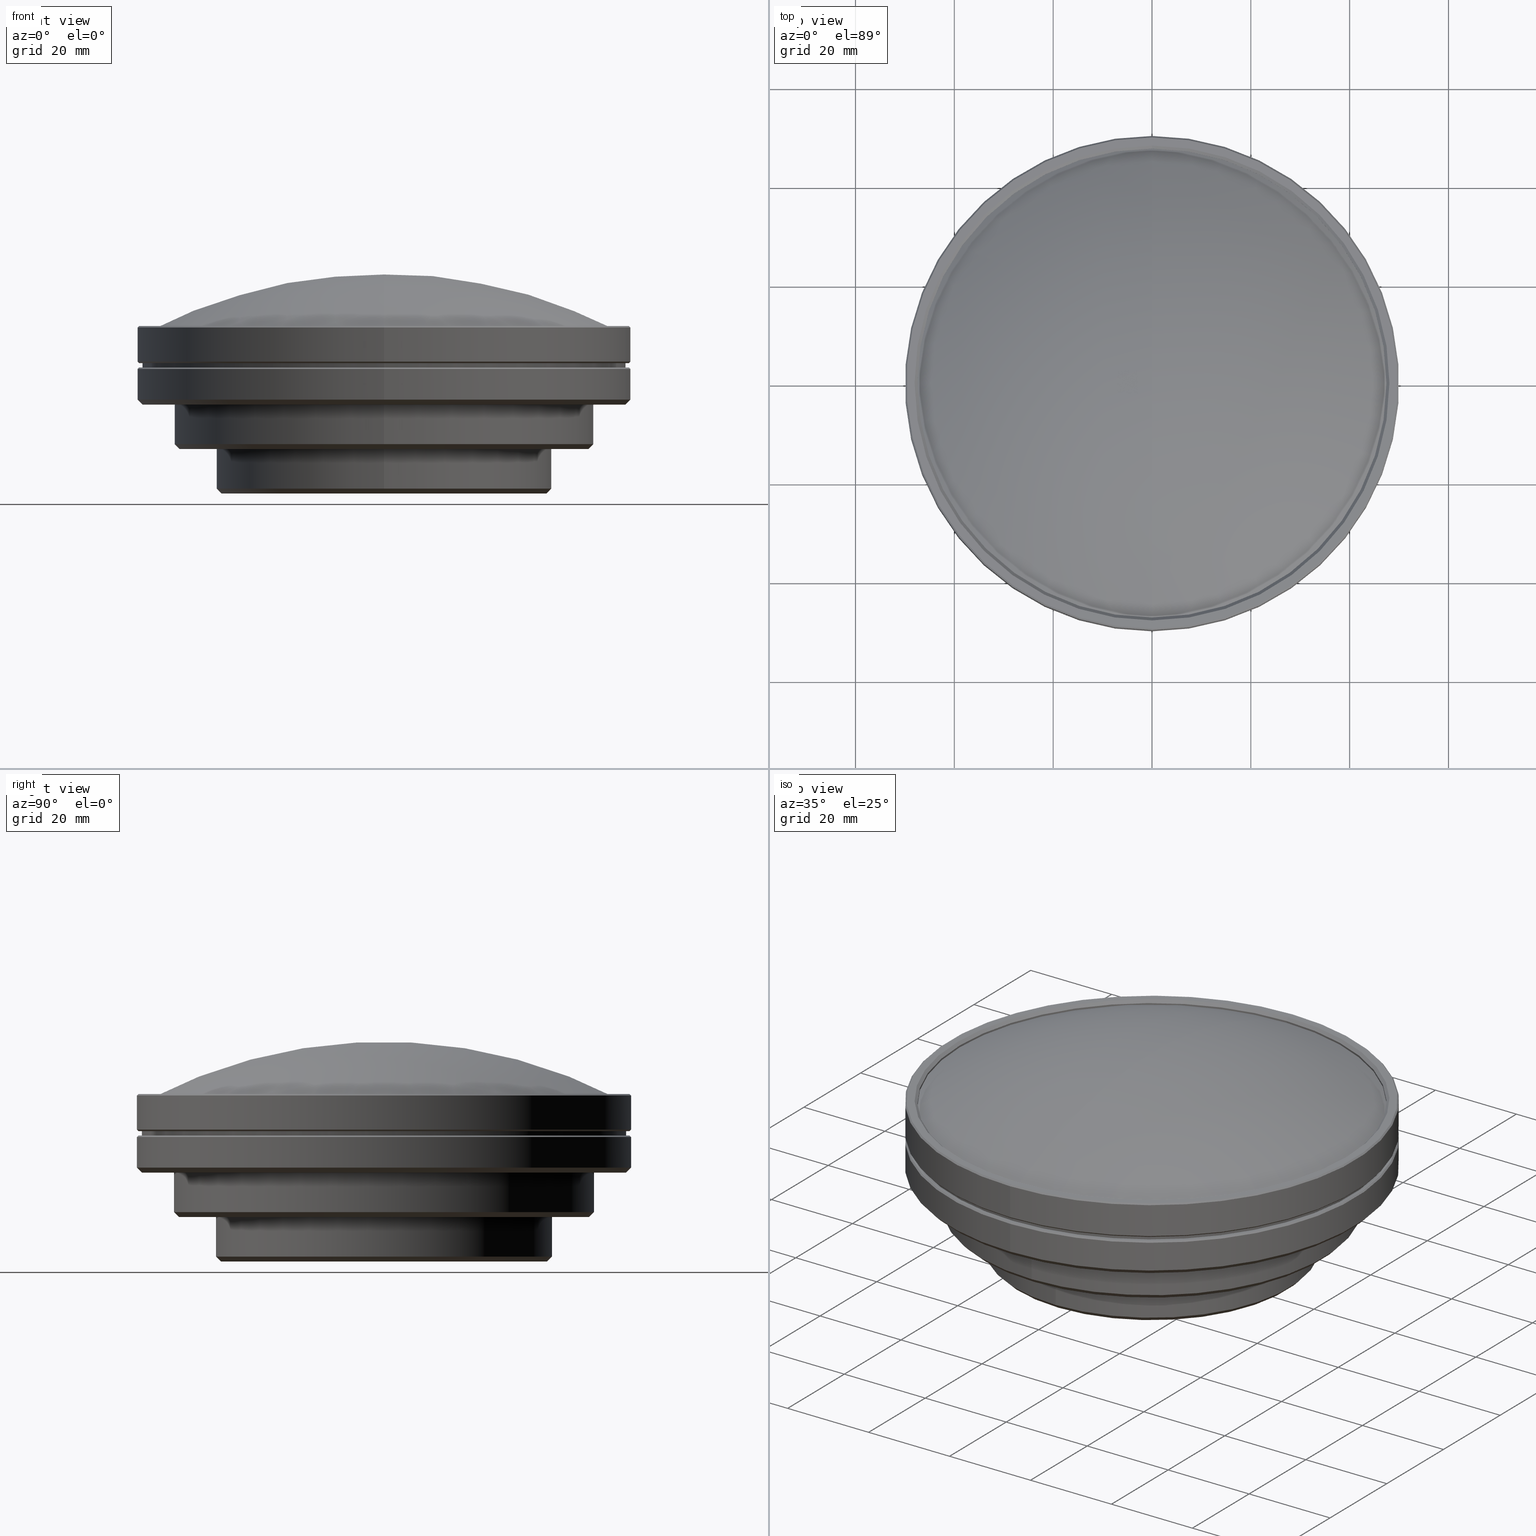
[diagram: canonical four-view strip — front | top / right | iso, engineering-drawing reading convention]
A machine part, canonical four-view strip (front | top / right | iso — engineering-drawing reading convention). The complete STEP part file that produces these views, byte-faithful:
ISO-10303-21;
HEADER;
FILE_DESCRIPTION (( 'STEP AP203' ),
    '1' );
FILE_NAME ('630015.STEP',
    '2021-06-03T01:53:40',
    ( '' ),
    ( '' ),
    'SwSTEP 2.0',
    'SolidWorks 2020',
    '' );
FILE_SCHEMA (( 'CONFIG_CONTROL_DESIGN' ));
ENDSEC;

DATA;
#1 = PLANE ( 'NONE',  #116 ) ;
#2 = DATE_AND_TIME ( #795, #756 ) ;
#3 = ADVANCED_FACE ( 'NONE', ( #384 ), #899, .T. ) ;
#4 = EDGE_LOOP ( 'NONE', ( #612, #842, #997, #68 ) ) ;
#5 = FACE_OUTER_BOUND ( 'NONE', #900, .T. ) ;
#6 = AXIS2_PLACEMENT_3D ( 'NONE', #210, #144, #836 ) ;
#7 = CARTESIAN_POINT ( 'NONE',  ( 0.000000000000000000, 0.000000000000000000, 35.38887531448999368 ) ) ;
#8 = DIRECTION ( 'NONE',  ( 0.000000000000000000, 0.000000000000000000, -1.000000000000000000 ) ) ;
#9 = DIRECTION ( 'NONE',  ( 0.000000000000000000, 0.000000000000000000, -1.000000000000000000 ) ) ;
#10 = ORIENTED_EDGE ( 'NONE', *, *, #593, .F. ) ;
#11 = EDGE_CURVE ( 'NONE', #54, #208, #921, .T. ) ;
#12 = DIRECTION ( 'NONE',  ( 0.000000000000000000, 0.000000000000000000, 1.000000000000000000 ) ) ;
#13 = CIRCLE ( 'NONE', #925, 49.69999999979000194 ) ;
#14 = DIRECTION ( 'NONE',  ( 0.000000000000000000, 0.000000000000000000, -1.000000000000000000 ) ) ;
#15 = CARTESIAN_POINT ( 'NONE',  ( 0.000000000000000000, 0.000000000000000000, 42.73887531487999780 ) ) ;
#16 = PERSON_AND_ORGANIZATION_ROLE ( 'creator' ) ;
#17 = CIRCLE ( 'NONE', #109, 23.25000000000000000 ) ;
#18 = ORIENTED_EDGE ( 'NONE', *, *, #170, .T. ) ;
#19 = DIRECTION ( 'NONE',  ( 0.000000000000000000, 1.000000000000000000, 0.000000000000000000 ) ) ;
#20 = CYLINDRICAL_SURFACE ( 'NONE', #416, 23.25000000000000000 ) ;
#21 = ADVANCED_FACE ( 'NONE', ( #527 ), #713, .T. ) ;
#22 = DIRECTION ( 'NONE',  ( 0.000000000000000000, 0.000000000000000000, 1.000000000000000000 ) ) ;
#23 = DIRECTION ( 'NONE',  ( 0.000000000000000000, 0.000000000000000000, 1.000000000000000000 ) ) ;
#24 = EDGE_LOOP ( 'NONE', ( #804, #82, #460, #774 ) ) ;
#25 = CARTESIAN_POINT ( 'NONE',  ( 0.000000000000000000, -23.25000000000000000, 9.099999999999999645 ) ) ;
#26 = CIRCLE ( 'NONE', #239, 47.44999999999999574 ) ;
#27 = VECTOR ( 'NONE', #347, 1000.000000000000000 ) ;
#28 = CARTESIAN_POINT ( 'NONE',  ( 0.000000000000000000, 48.05000000000000426, 42.88887531469999459 ) ) ;
#29 = AXIS2_PLACEMENT_3D ( 'NONE', #44, #62, #686 ) ;
#30 = PRODUCT_DEFINITION ( 'δ֪', '', #738, #520 ) ;
#31 = FACE_OUTER_BOUND ( 'NONE', #927, .T. ) ;
#32 = CONICAL_SURFACE ( 'NONE', #163, 33.49999999979000620, 0.7853981633972997312 ) ;
#33 = DIRECTION ( 'NONE',  ( 1.000000000000000000, 0.000000000000000000, 0.000000000000000000 ) ) ;
#34 = ORIENTED_EDGE ( 'NONE', *, *, #555, .F. ) ;
#35 = DIRECTION ( 'NONE',  ( 0.000000000000000000, -1.000000000000000000, 0.000000000000000000 ) ) ;
#36 = DIRECTION ( 'NONE',  ( 0.000000000000000000, 0.000000000000000000, -1.000000000000000000 ) ) ;
#37 = AXIS2_PLACEMENT_3D ( 'NONE', #423, #23, #33 ) ;
#38 = DIRECTION ( 'NONE',  ( 0.000000000000000000, 0.000000000000000000, -1.000000000000000000 ) ) ;
#39 = LOCAL_TIME ( 9, 53, 40.00000000000000000, #719 ) ;
#40 = DIRECTION ( 'NONE',  ( 0.000000000000000000, 0.000000000000000000, -1.000000000000000000 ) ) ;
#41 = CC_DESIGN_DATE_AND_TIME_ASSIGNMENT ( #354, #123, ( #380 ) ) ;
#42 = EDGE_LOOP ( 'NONE', ( #776, #186, #329, #150 ) ) ;
#43 = CARTESIAN_POINT ( 'NONE',  ( 0.000000000000000000, 0.000000000000000000, 56.14223884068000103 ) ) ;
#44 = CARTESIAN_POINT ( 'NONE',  ( 0.000000000000000000, 0.000000000000000000, 8.999999999579001653 ) ) ;
#45 = AXIS2_PLACEMENT_3D ( 'NONE', #802, #40, #633 ) ;
#46 = DIRECTION ( 'NONE',  ( 0.000000000000000000, -1.000000000000000000, 0.000000000000000000 ) ) ;
#47 = DIRECTION ( 'NONE',  ( 0.000000000000000000, 1.000000000000000000, 0.000000000000000000 ) ) ;
#48 = ORIENTED_EDGE ( 'NONE', *, *, #1009, .F. ) ;
#49 = EDGE_CURVE ( 'NONE', #768, #539, #529, .T. ) ;
#50 = CARTESIAN_POINT ( 'NONE',  ( 0.000000000000000000, 0.000000000000000000, 35.68887531469999885 ) ) ;
#51 = LINE ( 'NONE', #911, #161 ) ;
#52 = LINE ( 'NONE', #979, #1001 ) ;
#53 = AXIS2_PLACEMENT_3D ( 'NONE', #204, #134, #56 ) ;
#54 = VERTEX_POINT ( 'NONE', #609 ) ;
#55 = DIRECTION ( 'NONE',  ( 0.000000000000000000, -0.7071067811864980568, 0.7071067811865969777 ) ) ;
#56 = DIRECTION ( 'NONE',  ( 0.000000000000000000, 1.000000000000000000, 0.000000000000000000 ) ) ;
#57 = DIRECTION ( 'NONE',  ( 0.000000000000000000, 1.000000000000000000, 0.000000000000000000 ) ) ;
#58 = LOCAL_TIME ( 9, 53, 40.00000000000000000, #790 ) ;
#59 = CC_DESIGN_SECURITY_CLASSIFICATION ( #380, ( #738 ) ) ;
#60 = EDGE_LOOP ( 'NONE', ( #278, #464, #888, #452 ) ) ;
#61 = CARTESIAN_POINT ( 'NONE',  ( 0.000000000000000000, 47.44999999999999574, 42.28887531470000027 ) ) ;
#62 = DIRECTION ( 'NONE',  ( 0.000000000000000000, 0.000000000000000000, 1.000000000000000000 ) ) ;
#63 = ORIENTED_EDGE ( 'NONE', *, *, #932, .T. ) ;
#64 = EDGE_CURVE ( 'NONE', #398, #767, #51, .T. ) ;
#65 = PRODUCT_DEFINITION_SHAPE ( 'NONE', 'NONE',  #30 ) ;
#66 = EDGE_LOOP ( 'NONE', ( #412, #636 ) ) ;
#67 = DIRECTION ( 'NONE',  ( 0.000000000000000000, 0.7071067811864980568, 0.7071067811865969777 ) ) ;
#68 = ORIENTED_EDGE ( 'NONE', *, *, #496, .T. ) ;
#69 = CIRCLE ( 'NONE', #389, 47.44999999999999574 ) ;
#70 = EDGE_CURVE ( 'NONE', #142, #363, #303, .T. ) ;
#71 = AXIS2_PLACEMENT_3D ( 'NONE', #343, #104, #721 ) ;
#72 = ORIENTED_EDGE ( 'NONE', *, *, #373, .F. ) ;
#73 = AXIS2_PLACEMENT_3D ( 'NONE', #352, #503, #659 ) ;
#74 = AXIS2_PLACEMENT_3D ( 'NONE', #915, #387, #459 ) ;
#75 = ORIENTED_EDGE ( 'NONE', *, *, #541, .F. ) ;
#76 = VECTOR ( 'NONE', #272, 1000.000000000000114 ) ;
#77 = EDGE_LOOP ( 'NONE', ( #975, #132, #572, #227 ) ) ;
#78 = EDGE_CURVE ( 'NONE', #250, #691, #283, .T. ) ;
#79 = CONICAL_SURFACE ( 'NONE', #605, 47.75000000000000000, 0.7853981633971250931 ) ;
#80 = CONICAL_SURFACE ( 'NONE', #217, 49.49999999990999555, 0.7853981633972997312 ) ;
#81 = AXIS2_PLACEMENT_3D ( 'NONE', #999, #300, #671 ) ;
#82 = ORIENTED_EDGE ( 'NONE', *, *, #200, .F. ) ;
#83 = CIRCLE ( 'NONE', #391, 49.69999999963999926 ) ;
#84 = CARTESIAN_POINT ( 'NONE',  ( 0.000000000000000000, 0.000000000000000000, 35.68887531469999885 ) ) ;
#85 = DIRECTION ( 'NONE',  ( 0.000000000000000000, 1.000000000000000000, 0.000000000000000000 ) ) ;
#86 = AXIS2_PLACEMENT_3D ( 'NONE', #432, #825, #736 ) ;
#87 = VERTEX_POINT ( 'NONE', #280 ) ;
#88 = AXIS2_PLACEMENT_3D ( 'NONE', #861, #557, #235 ) ;
#89 = CARTESIAN_POINT ( 'NONE',  ( 0.000000000000000000, 0.000000000000000000, 26.99999999981999821 ) ) ;
#90 = CARTESIAN_POINT ( 'NONE',  ( 0.000000000000000000, -47.44999999999999574, 41.88887531470000170 ) ) ;
#91 = ADVANCED_FACE ( 'NONE', ( #982 ), #591, .T. ) ;
#92 = ORIENTED_EDGE ( 'NONE', *, *, #296, .T. ) ;
#93 = CARTESIAN_POINT ( 'NONE',  ( 0.000000000000000000, 50.00000000000000000, 34.20000000000000284 ) ) ;
#94 = CARTESIAN_POINT ( 'NONE',  ( 0.000000000000000000, 0.000000000000000000, 18.49999999986000176 ) ) ;
#95 = APPROVAL ( #814, 'δָ��' ) ;
#96 = APPLICATION_PROTOCOL_DEFINITION ( 'international standard', 'config_control_design', 1994, #827 ) ;
#97 = ORIENTED_EDGE ( 'NONE', *, *, #470, .T. ) ;
#98 = DIRECTION ( 'NONE',  ( 0.000000000000000000, 1.000000000000000000, 0.000000000000000000 ) ) ;
#99 = AXIS2_PLACEMENT_3D ( 'NONE', #139, #759, #449 ) ;
#100 = LINE ( 'NONE', #491, #346 ) ;
#101 = CARTESIAN_POINT ( 'NONE',  ( 0.000000000000000000, 41.49999999972000353, 17.99999999971999998 ) ) ;
#102 = ORIENTED_EDGE ( 'NONE', *, *, #164, .F. ) ;
#103 = EDGE_CURVE ( 'NONE', #320, #223, #603, .T. ) ;
#104 = DIRECTION ( 'NONE',  ( 0.000000000000000000, 0.000000000000000000, 1.000000000000000000 ) ) ;
#105 = CIRCLE ( 'NONE', #334, 50.00000000000000000 ) ;
#106 = LINE ( 'NONE', #421, #261 ) ;
#107 = DIRECTION ( 'NONE',  ( 0.000000000000000000, 1.000000000000000000, 0.000000000000000000 ) ) ;
#108 = APPROVAL_ROLE ( '' ) ;
#109 = AXIS2_PLACEMENT_3D ( 'NONE', #729, #205, #978 ) ;
#110 = VERTEX_POINT ( 'NONE', #902 ) ;
#111 = DIRECTION ( 'NONE',  ( 0.000000000000000000, 1.000000000000000000, 0.000000000000000000 ) ) ;
#112 = ADVANCED_FACE ( 'NONE', ( #681 ), #553, .T. ) ;
#113 = CARTESIAN_POINT ( 'NONE',  ( 0.000000000000000000, 0.000000000000000000, 26.99999999981999821 ) ) ;
#114 = DIRECTION ( 'NONE',  ( 0.000000000000000000, -1.000000000000000000, 0.000000000000000000 ) ) ;
#115 = PERSON_AND_ORGANIZATION ( #240, #128 ) ;
#116 = AXIS2_PLACEMENT_3D ( 'NONE', #562, #711, #326 ) ;
#117 = VERTEX_POINT ( 'NONE', #995 ) ;
#118 = DIRECTION ( 'NONE',  ( 0.000000000000000000, 1.000000000000000000, 0.000000000000000000 ) ) ;
#119 = FACE_OUTER_BOUND ( 'NONE', #740, .T. ) ;
#120 = AXIS2_PLACEMENT_3D ( 'NONE', #598, #377, #222 ) ;
#121 = DIRECTION ( 'NONE',  ( 0.000000000000000000, 1.000000000000000000, 0.000000000000000000 ) ) ;
#122 = VECTOR ( 'NONE', #651, 1000.000000000000000 ) ;
#123 = DATE_TIME_ROLE ( 'classification_date' ) ;
#124 = UNCERTAINTY_MEASURE_WITH_UNIT (LENGTH_MEASURE( 1.000000000000000082E-05 ), #939, 'distance_accuracy_value', 'NONE');
#125 = ORIENTED_EDGE ( 'NONE', *, *, #290, .F. ) ;
#126 = SPHERICAL_SURFACE ( 'NONE', #934, 103.0057371891000031 ) ;
#127 = DIRECTION ( 'NONE',  ( 0.000000000000000000, 0.000000000000000000, -1.000000000000000000 ) ) ;
#128 = ORGANIZATION ( 'δָ��', 'δָ��', '' ) ;
#129 = FACE_OUTER_BOUND ( 'NONE', #987, .T. ) ;
#130 = LINE ( 'NONE', #996, #1006 ) ;
#131 = ADVANCED_FACE ( 'NONE', ( #444 ), #371, .F. ) ;
#132 = ORIENTED_EDGE ( 'NONE', *, *, #622, .F. ) ;
#133 = CARTESIAN_POINT ( 'NONE',  ( 0.000000000000000000, 0.000000000000000000, 18.49999999986000176 ) ) ;
#134 = DIRECTION ( 'NONE',  ( 0.000000000000000000, 0.000000000000000000, 1.000000000000000000 ) ) ;
#135 = DIRECTION ( 'NONE',  ( 0.000000000000000000, 1.000000000000000000, 0.000000000000000000 ) ) ;
#136 = EDGE_CURVE ( 'NONE', #336, #657, #26, .T. ) ;
#137 = EDGE_LOOP ( 'NONE', ( #546, #684 ) ) ;
#138 = DIRECTION ( 'NONE',  ( 0.000000000000000000, 1.000000000000000000, 0.000000000000000000 ) ) ;
#139 = CARTESIAN_POINT ( 'NONE',  ( 0.000000000000000000, 0.000000000000000000, 27.49999999990999910 ) ) ;
#140 = CARTESIAN_POINT ( 'NONE',  ( 0.000000000000000000, -32.99999999957999819, 8.999999999579001653 ) ) ;
#141 = CIRCLE ( 'NONE', #229, 49.00000000000000000 ) ;
#142 = VERTEX_POINT ( 'NONE', #180 ) ;
#143 = DIRECTION ( 'NONE',  ( 0.000000000000000000, -1.000000000000000000, 0.000000000000000000 ) ) ;
#144 = DIRECTION ( 'NONE',  ( 0.000000000000000000, 0.000000000000000000, -1.000000000000000000 ) ) ;
#145 = VERTEX_POINT ( 'NONE', #735 ) ;
#146 = ADVANCED_FACE ( 'NONE', ( #665, #963 ), #949, .F. ) ;
#147 = DIRECTION ( 'NONE',  ( 0.000000000000000000, 0.000000000000000000, -1.000000000000000000 ) ) ;
#148 = VERTEX_POINT ( 'NONE', #337 ) ;
#149 = CYLINDRICAL_SURFACE ( 'NONE', #74, 49.00000000000000000 ) ;
#150 = ORIENTED_EDGE ( 'NONE', *, *, #974, .F. ) ;
#151 = EDGE_CURVE ( 'NONE', #882, #142, #560, .T. ) ;
#152 = ORIENTED_EDGE ( 'NONE', *, *, #11, .T. ) ;
#153 = ORIENTED_EDGE ( 'NONE', *, *, #319, .F. ) ;
#154 = ORIENTED_EDGE ( 'NONE', *, *, #702, .T. ) ;
#155 = CONICAL_SURFACE ( 'NONE', #907, 41.99999999986000176, 0.7853981633972997312 ) ;
#156 = EDGE_CURVE ( 'NONE', #110, #610, #243, .T. ) ;
#157 = ORIENTED_EDGE ( 'NONE', *, *, #620, .F. ) ;
#158 = VERTEX_POINT ( 'NONE', #175 ) ;
#159 = CARTESIAN_POINT ( 'NONE',  ( 0.000000000000000000, -42.50000000000000000, 19.00000000000000000 ) ) ;
#160 = AXIS2_PLACEMENT_3D ( 'NONE', #748, #12, #118 ) ;
#161 = VECTOR ( 'NONE', #923, 1000.000000000000114 ) ;
#162 = ORIENTED_EDGE ( 'NONE', *, *, #1009, .T. ) ;
#163 = AXIS2_PLACEMENT_3D ( 'NONE', #277, #838, #47 ) ;
#164 = EDGE_CURVE ( 'NONE', #320, #549, #551, .T. ) ;
#165 = CARTESIAN_POINT ( 'NONE',  ( 0.000000000000000000, 0.000000000000000000, 8.999999999579001653 ) ) ;
#166 = AXIS2_PLACEMENT_3D ( 'NONE', #260, #794, #886 ) ;
#167 = CC_DESIGN_APPROVAL ( #852, ( #380 ) ) ;
#168 = ORIENTED_EDGE ( 'NONE', *, *, #319, .T. ) ;
#169 = DIRECTION ( 'NONE',  ( 0.000000000000000000, 1.000000000000000000, 0.000000000000000000 ) ) ;
#170 = EDGE_CURVE ( 'NONE', #237, #474, #450, .T. ) ;
#171 = DIRECTION ( 'NONE',  ( 0.000000000000000000, 1.000000000000000000, 0.000000000000000000 ) ) ;
#172 = FACE_OUTER_BOUND ( 'NONE', #870, .T. ) ;
#173 = AXIS2_PLACEMENT_3D ( 'NONE', #654, #875, #121 ) ;
#174 = ORIENTED_EDGE ( 'NONE', *, *, #669, .F. ) ;
#175 = CARTESIAN_POINT ( 'NONE',  ( 0.000000000000000000, -49.00000000000000000, 35.38887531448999368 ) ) ;
#176 = CARTESIAN_POINT ( 'NONE',  ( 0.000000000000000000, 0.000000000000000000, 8.999999999579001653 ) ) ;
#177 = FACE_BOUND ( 'NONE', #369, .T. ) ;
#178 = ORIENTED_EDGE ( 'NONE', *, *, #1016, .F. ) ;
#179 = AXIS2_PLACEMENT_3D ( 'NONE', #673, #147, #291 ) ;
#180 = CARTESIAN_POINT ( 'NONE',  ( 0.000000000000000000, 50.00000000000000000, 34.20000000000000284 ) ) ;
#181 = AXIS2_PLACEMENT_3D ( 'NONE', #198, #127, #977 ) ;
#182 = LINE ( 'NONE', #645, #298 ) ;
#183 = DIRECTION ( 'NONE',  ( 0.000000000000000000, 0.000000000000000000, -1.000000000000000000 ) ) ;
#184 = SECURITY_CLASSIFICATION_LEVEL ( 'unclassified' ) ;
#185 = ADVANCED_FACE ( 'NONE', ( #585 ), #413, .T. ) ;
#186 = ORIENTED_EDGE ( 'NONE', *, *, #64, .T. ) ;
#187 = DIRECTION ( 'NONE',  ( 0.000000000000000000, 0.000000000000000000, 1.000000000000000000 ) ) ;
#188 = FACE_OUTER_BOUND ( 'NONE', #935, .T. ) ;
#189 = CARTESIAN_POINT ( 'NONE',  ( 0.000000000000000000, 0.000000000000000000, 42.58887531469999743 ) ) ;
#190 = PERSON_AND_ORGANIZATION_ROLE ( 'design_supplier' ) ;
#191 = ORIENTED_EDGE ( 'NONE', *, *, #213, .T. ) ;
#192 = DIRECTION ( 'NONE',  ( 0.000000000000000000, 1.000000000000000000, 0.000000000000000000 ) ) ;
#193 = DIRECTION ( 'NONE',  ( 0.000000000000000000, 1.000000000000000000, 0.000000000000000000 ) ) ;
#194 = CARTESIAN_POINT ( 'NONE',  ( 0.000000000000000000, -23.25000000000000000, 9.099999999999999645 ) ) ;
#195 = PERSON_AND_ORGANIZATION_ROLE ( 'classification_officer' ) ;
#196 = ORIENTED_EDGE ( 'NONE', *, *, #653, .F. ) ;
#197 = DIRECTION ( 'NONE',  ( 0.000000000000000000, 0.000000000000000000, -1.000000000000000000 ) ) ;
#198 = CARTESIAN_POINT ( 'NONE',  ( 0.000000000000000000, 0.000000000000000000, 56.14223884068000103 ) ) ;
#199 = DIRECTION ( 'NONE',  ( 0.000000000000000000, 0.000000000000000000, -1.000000000000000000 ) ) ;
#200 = EDGE_CURVE ( 'NONE', #521, #398, #566, .T. ) ;
#201 = CARTESIAN_POINT ( 'NONE',  ( 0.000000000000000000, 49.69999999975999572, 42.88887531493999461 ) ) ;
#202 = EDGE_LOOP ( 'NONE', ( #757, #554 ) ) ;
#203 = DIRECTION ( 'NONE',  ( 0.000000000000000000, -1.000000000000000000, 0.000000000000000000 ) ) ;
#204 = CARTESIAN_POINT ( 'NONE',  ( 0.000000000000000000, 0.000000000000000000, 9.499999999789000782 ) ) ;
#205 = DIRECTION ( 'NONE',  ( 0.000000000000000000, 0.000000000000000000, 1.000000000000000000 ) ) ;
#206 = ADVANCED_FACE ( 'NONE', ( #805 ), #656, .T. ) ;
#207 = DIRECTION ( 'NONE',  ( 0.000000000000000000, 0.7071067811864980568, 0.7071067811865969777 ) ) ;
#208 = VERTEX_POINT ( 'NONE', #895 ) ;
#209 = DIRECTION ( 'NONE',  ( 0.000000000000000000, -0.4606539528269920081, 0.8875798193654852453 ) ) ;
#210 = CARTESIAN_POINT ( 'NONE',  ( 0.000000000000000000, 0.000000000000000000, 56.14223884068000103 ) ) ;
#211 = AXIS2_PLACEMENT_3D ( 'NONE', #94, #267, #648 ) ;
#212 = CARTESIAN_POINT ( 'NONE',  ( 0.000000000000000000, 0.000000000000000000, 34.50000000000000000 ) ) ;
#213 = EDGE_CURVE ( 'NONE', #285, #767, #83, .T. ) ;
#214 = ORIENTED_EDGE ( 'NONE', *, *, #983, .F. ) ;
#215 = CARTESIAN_POINT ( 'NONE',  ( 0.000000000000000000, -42.50000000000000000, 26.99999999981999821 ) ) ;
#216 = DIRECTION ( 'NONE',  ( 0.000000000000000000, 0.000000000000000000, -1.000000000000000000 ) ) ;
#217 = AXIS2_PLACEMENT_3D ( 'NONE', #642, #813, #422 ) ;
#218 = DIRECTION ( 'NONE',  ( 0.000000000000000000, 0.000000000000000000, -1.000000000000000000 ) ) ;
#219 = ORIENTED_EDGE ( 'NONE', *, *, #441, .F. ) ;
#220 = EDGE_CURVE ( 'NONE', #882, #225, #607, .T. ) ;
#221 = DIRECTION ( 'NONE',  ( 0.000000000000000000, -1.000000000000000000, 0.000000000000000000 ) ) ;
#222 = DIRECTION ( 'NONE',  ( 0.000000000000000000, 1.000000000000000000, 0.000000000000000000 ) ) ;
#223 = VERTEX_POINT ( 'NONE', #510 ) ;
#224 = AXIS2_PLACEMENT_3D ( 'NONE', #628, #357, #169 ) ;
#225 = VERTEX_POINT ( 'NONE', #817 ) ;
#226 = EDGE_LOOP ( 'NONE', ( #314, #418, #1011, #1000 ) ) ;
#227 = ORIENTED_EDGE ( 'NONE', *, *, #151, .T. ) ;
#228 = ADVANCED_FACE ( 'NONE', ( #708, #5 ), #330, .F. ) ;
#229 = AXIS2_PLACEMENT_3D ( 'NONE', #678, #820, #57 ) ;
#230 = EDGE_LOOP ( 'NONE', ( #92, #406, #436, #424 ) ) ;
#231 = EDGE_CURVE ( 'NONE', #549, #117, #798, .T. ) ;
#232 = VECTOR ( 'NONE', #664, 1000.000000000000114 ) ;
#233 = CIRCLE ( 'NONE', #310, 48.99999999981999821 ) ;
#234 = EDGE_LOOP ( 'NONE', ( #931, #746, #10, #403 ) ) ;
#235 = DIRECTION ( 'NONE',  ( 0.000000000000000000, 1.000000000000000000, 0.000000000000000000 ) ) ;
#236 = EDGE_CURVE ( 'NONE', #54, #250, #485, .T. ) ;
#237 = VERTEX_POINT ( 'NONE', #716 ) ;
#238 = FACE_OUTER_BOUND ( 'NONE', #234, .T. ) ;
#239 = AXIS2_PLACEMENT_3D ( 'NONE', #916, #36, #883 ) ;
#240 = PERSON ( 'δָ��', 'δָ��', 'δָ��', ('δָ��'), ('δָ��'), ('δָ��') ) ;
#241 = ORIENTED_EDGE ( 'NONE', *, *, #845, .F. ) ;
#242 = EDGE_CURVE ( 'NONE', #336, #657, #611, .T. ) ;
#243 = CIRCLE ( 'NONE', #530, 49.69999999979000194 ) ;
#244 = LINE ( 'NONE', #866, #232 ) ;
#245 = CYLINDRICAL_SURFACE ( 'NONE', #973, 50.00000000000000000 ) ;
#246 = CARTESIAN_POINT ( 'NONE',  ( 0.000000000000000000, -48.99999999981999821, 26.99999999981999821 ) ) ;
#247 = VECTOR ( 'NONE', #860, 1000.000000000000114 ) ;
#248 = SHAPE_DEFINITION_REPRESENTATION ( #65, #475 ) ;
#249 = CIRCLE ( 'NONE', #73, 50.00000000000000000 ) ;
#250 = VERTEX_POINT ( 'NONE', #810 ) ;
#251 = DIRECTION ( 'NONE',  ( 0.000000000000000000, 0.000000000000000000, -1.000000000000000000 ) ) ;
#252 = CARTESIAN_POINT ( 'NONE',  ( 0.000000000000000000, 0.000000000000000000, 56.14223884068000103 ) ) ;
#253 = DIRECTION ( 'NONE',  ( 0.000000000000000000, 1.000000000000000000, 0.000000000000000000 ) ) ;
#254 = FACE_OUTER_BOUND ( 'NONE', #559, .T. ) ;
#255 = AXIS2_PLACEMENT_3D ( 'NONE', #558, #183, #492 ) ;
#256 = ORIENTED_EDGE ( 'NONE', *, *, #905, .T. ) ;
#257 = CARTESIAN_POINT ( 'NONE',  ( 0.000000000000000000, 0.000000000000000000, 28.00000000000000000 ) ) ;
#258 = CARTESIAN_POINT ( 'NONE',  ( 0.000000000000000000, 0.000000000000000000, 42.28887531470000027 ) ) ;
#259 = CC_DESIGN_PERSON_AND_ORGANIZATION_ASSIGNMENT ( #341, #417, ( #765 ) ) ;
#260 = CARTESIAN_POINT ( 'NONE',  ( 0.000000000000000000, 0.000000000000000000, 35.38887531448999368 ) ) ;
#261 = VECTOR ( 'NONE', #891, 1000.000000000000000 ) ;
#262 = COORDINATED_UNIVERSAL_TIME_OFFSET ( 8, 0, .AHEAD. ) ;
#263 = EDGE_LOOP ( 'NONE', ( #631, #393, #219, #256 ) ) ;
#264 = DIRECTION ( 'NONE',  ( 0.000000000000000000, -1.000000000000000000, 0.000000000000000000 ) ) ;
#265 = VECTOR ( 'NONE', #667, 1000.000000000000000 ) ;
#266 = DIRECTION ( 'NONE',  ( 0.000000000000000000, 1.000000000000000000, 0.000000000000000000 ) ) ;
#267 = DIRECTION ( 'NONE',  ( 0.000000000000000000, 0.000000000000000000, 1.000000000000000000 ) ) ;
#268 = EDGE_LOOP ( 'NONE', ( #508, #694, #703, #297 ) ) ;
#269 = CARTESIAN_POINT ( 'NONE',  ( 0.000000000000000000, 32.99999999957999819, 8.999999999579001653 ) ) ;
#270 = MANIFOLD_SOLID_BREP ( '630015-RL09130A-ZP00_2019-05-18.stp', #634 ) ;
#271 = CARTESIAN_POINT ( 'NONE',  ( 0.000000000000000000, 0.000000000000000000, 17.99999999971999998 ) ) ;
#272 = DIRECTION ( 'NONE',  ( 0.000000000000000000, 0.7071067811865975328, 0.7071067811864976127 ) ) ;
#273 = EDGE_LOOP ( 'NONE', ( #386, #877, #48, #693 ) ) ;
#274 = CARTESIAN_POINT ( 'NONE',  ( 0.000000000000000000, 0.000000000000000000, 56.14223884068000103 ) ) ;
#275 = CARTESIAN_POINT ( 'NONE',  ( 0.000000000000000000, -50.00000000000000000, 35.68887531469999885 ) ) ;
#276 = CYLINDRICAL_SURFACE ( 'NONE', #308, 23.25000000000000000 ) ;
#277 = CARTESIAN_POINT ( 'NONE',  ( 0.000000000000000000, 0.000000000000000000, 9.499999999789000782 ) ) ;
#278 = ORIENTED_EDGE ( 'NONE', *, *, #739, .T. ) ;
#279 = CARTESIAN_POINT ( 'NONE',  ( 0.000000000000000000, -41.49999999972000353, 17.99999999971999998 ) ) ;
#280 = CARTESIAN_POINT ( 'NONE',  ( 0.000000000000000000, 49.00000000000000000, 35.38887531448999368 ) ) ;
#281 = EDGE_CURVE ( 'NONE', #1014, #980, #753, .T. ) ;
#282 = DIRECTION ( 'NONE',  ( 0.000000000000000000, 0.000000000000000000, 1.000000000000000000 ) ) ;
#283 = CIRCLE ( 'NONE', #120, 34.00000000000000000 ) ;
#284 = DIRECTION ( 'NONE',  ( 0.000000000000000000, 0.7071067811865969777, 0.7071067811864980568 ) ) ;
#285 = VERTEX_POINT ( 'NONE', #201 ) ;
#286 = CYLINDRICAL_SURFACE ( 'NONE', #1008, 50.00000000000000000 ) ;
#287 = VERTEX_POINT ( 'NONE', #898 ) ;
#288 = AXIS2_PLACEMENT_3D ( 'NONE', #325, #399, #35 ) ;
#289 = CIRCLE ( 'NONE', #309, 23.25000000000000000 ) ;
#290 = EDGE_CURVE ( 'NONE', #87, #158, #141, .T. ) ;
#291 = DIRECTION ( 'NONE',  ( 0.000000000000000000, 1.000000000000000000, 0.000000000000000000 ) ) ;
#292 = ORIENTED_EDGE ( 'NONE', *, *, #974, .T. ) ;
#293 = FACE_OUTER_BOUND ( 'NONE', #668, .T. ) ;
#294 = DIRECTION ( 'NONE',  ( 0.000000000000000000, -1.000000000000000000, 0.000000000000000000 ) ) ;
#295 = LINE ( 'NONE', #531, #265 ) ;
#296 = EDGE_CURVE ( 'NONE', #148, #145, #781, .T. ) ;
#297 = ORIENTED_EDGE ( 'NONE', *, *, #315, .F. ) ;
#298 = VECTOR ( 'NONE', #785, 1000.000000000000000 ) ;
#299 = CARTESIAN_POINT ( 'NONE',  ( 0.000000000000000000, 0.000000000000000000, -49.53693829316999597 ) ) ;
#300 = DIRECTION ( 'NONE',  ( 0.000000000000000000, 0.000000000000000000, 1.000000000000000000 ) ) ;
#301 = ORIENTED_EDGE ( 'NONE', *, *, #164, .T. ) ;
#302 = CIRCLE ( 'NONE', #858, 49.00000000000000000 ) ;
#303 = CIRCLE ( 'NONE', #1004, 50.00000000000000000 ) ;
#304 = VECTOR ( 'NONE', #792, 1000.000000000000114 ) ;
#305 = EDGE_LOOP ( 'NONE', ( #191, #674, #75, #292 ) ) ;
#306 = CARTESIAN_POINT ( 'NONE',  ( 0.000000000000000000, 0.000000000000000000, 34.20000000000000284 ) ) ;
#307 = EDGE_LOOP ( 'NONE', ( #301, #34 ) ) ;
#308 = AXIS2_PLACEMENT_3D ( 'NONE', #366, #574, #586 ) ;
#309 = AXIS2_PLACEMENT_3D ( 'NONE', #725, #22, #499 ) ;
#310 = AXIS2_PLACEMENT_3D ( 'NONE', #547, #8, #626 ) ;
#311 = ORIENTED_EDGE ( 'NONE', *, *, #637, .T. ) ;
#312 = EDGE_CURVE ( 'NONE', #110, #489, #451, .T. ) ;
#313 = CIRCLE ( 'NONE', #772, 41.49999999972000353 ) ;
#314 = ORIENTED_EDGE ( 'NONE', *, *, #593, .T. ) ;
#315 = EDGE_CURVE ( 'NONE', #489, #627, #130, .T. ) ;
#316 = AXIS2_PLACEMENT_3D ( 'NONE', #257, #420, #878 ) ;
#317 = ORIENTED_EDGE ( 'NONE', *, *, #323, .T. ) ;
#318 = DIRECTION ( 'NONE',  ( 0.000000000000000000, 0.000000000000000000, 1.000000000000000000 ) ) ;
#319 = EDGE_CURVE ( 'NONE', #429, #619, #302, .T. ) ;
#320 = VERTEX_POINT ( 'NONE', #361 ) ;
#321 = DIRECTION ( 'NONE',  ( 0.000000000000000000, 0.7071067811863974706, -0.7071067811866975639 ) ) ;
#322 = FACE_OUTER_BOUND ( 'NONE', #808, .T. ) ;
#323 = EDGE_CURVE ( 'NONE', #429, #87, #52, .T. ) ;
#324 = ORIENTED_EDGE ( 'NONE', *, *, #281, .F. ) ;
#325 = CARTESIAN_POINT ( 'NONE',  ( 0.000000000000000000, 0.000000000000000000, -49.53693829316999597 ) ) ;
#326 = DIRECTION ( 'NONE',  ( 0.000000000000000000, -1.000000000000000000, 0.000000000000000000 ) ) ;
#327 = DATE_TIME_ROLE ( 'creation_date' ) ;
#328 = VECTOR ( 'NONE', #676, 1000.000000000000000 ) ;
#329 = ORIENTED_EDGE ( 'NONE', *, *, #957, .F. ) ;
#330 = PLANE ( 'NONE',  #945 ) ;
#331 = FACE_OUTER_BOUND ( 'NONE', #687, .T. ) ;
#332 = DIRECTION ( 'NONE',  ( 0.000000000000000000, 0.000000000000000000, 1.000000000000000000 ) ) ;
#333 = LINE ( 'NONE', #575, #933 ) ;
#334 = AXIS2_PLACEMENT_3D ( 'NONE', #50, #994, #370 ) ;
#335 = PERSON_AND_ORGANIZATION ( #240, #128 ) ;
#336 = VERTEX_POINT ( 'NONE', #832 ) ;
#337 = CARTESIAN_POINT ( 'NONE',  ( 0.000000000000000000, 34.00000000000000000, 17.99999999971999998 ) ) ;
#338 = ADVANCED_FACE ( 'NONE', ( #683 ), #912, .T. ) ;
#339 = LINE ( 'NONE', #159, #961 ) ;
#340 = DIRECTION ( 'NONE',  ( 0.000000000000000000, 0.000000000000000000, -1.000000000000000000 ) ) ;
#341 = PERSON_AND_ORGANIZATION ( #240, #128 ) ;
#342 = ORIENTED_EDGE ( 'NONE', *, *, #103, .T. ) ;
#343 = CARTESIAN_POINT ( 'NONE',  ( 0.000000000000000000, 0.000000000000000000, 41.88887531470000170 ) ) ;
#344 = CIRCLE ( 'NONE', #616, 42.50000000000000000 ) ;
#345 = FACE_OUTER_BOUND ( 'NONE', #606, .T. ) ;
#346 = VECTOR ( 'NONE', #629, 1000.000000000000000 ) ;
#347 = DIRECTION ( 'NONE',  ( 0.000000000000000000, -0.7071067811864980568, 0.7071067811865969777 ) ) ;
#348 = APPLICATION_PROTOCOL_DEFINITION ( 'international standard', 'config_control_design', 1994, #368 ) ;
#349 = ORIENTED_EDGE ( 'NONE', *, *, #78, .F. ) ;
#350 = DIRECTION ( 'NONE',  ( 0.000000000000000000, 0.000000000000000000, -1.000000000000000000 ) ) ;
#351 = VECTOR ( 'NONE', #518, 1000.000000000000114 ) ;
#352 = CARTESIAN_POINT ( 'NONE',  ( 0.000000000000000000, 0.000000000000000000, 28.00000000000000000 ) ) ;
#353 = FACE_OUTER_BOUND ( 'NONE', #938, .T. ) ;
#354 = DATE_AND_TIME ( #494, #39 ) ;
#355 = CIRCLE ( 'NONE', #801, 50.00000000000000000 ) ;
#356 = ORIENTED_EDGE ( 'NONE', *, *, #796, .T. ) ;
#357 = DIRECTION ( 'NONE',  ( 0.000000000000000000, 0.000000000000000000, 1.000000000000000000 ) ) ;
#358 = CARTESIAN_POINT ( 'NONE',  ( 0.000000000000000000, 0.000000000000000000, 35.38887531448999368 ) ) ;
#359 = AXIS2_PLACEMENT_3D ( 'NONE', #252, #197, #550 ) ;
#360 = CARTESIAN_POINT ( 'NONE',  ( 0.000000000000000000, 0.000000000000000000, 56.14223884068000103 ) ) ;
#361 = CARTESIAN_POINT ( 'NONE',  ( 0.000000000000000000, 23.25000000000000000, 9.099999999999999645 ) ) ;
#362 = EDGE_CURVE ( 'NONE', #691, #145, #295, .T. ) ;
#363 = VERTEX_POINT ( 'NONE', #594 ) ;
#364 = DIRECTION ( 'NONE',  ( 0.000000000000000000, 0.000000000000000000, -1.000000000000000000 ) ) ;
#365 = DIRECTION ( 'NONE',  ( 0.000000000000000000, 0.000000000000000000, 1.000000000000000000 ) ) ;
#366 = CARTESIAN_POINT ( 'NONE',  ( 0.000000000000000000, 0.000000000000000000, 56.14223884068000103 ) ) ;
#367 = DIRECTION ( 'NONE',  ( 0.000000000000000000, 0.000000000000000000, 1.000000000000000000 ) ) ;
#368 = APPLICATION_CONTEXT ( 'configuration controlled 3d designs of mechanical parts and assemblies' ) ;
#369 = EDGE_LOOP ( 'NONE', ( #125, #791 ) ) ;
#370 = DIRECTION ( 'NONE',  ( 0.000000000000000000, 1.000000000000000000, 0.000000000000000000 ) ) ;
#371 = CYLINDRICAL_SURFACE ( 'NONE', #471, 47.44999999999999574 ) ;
#372 = AXIS2_PLACEMENT_3D ( 'NONE', #917, #367, #600 ) ;
#373 = EDGE_CURVE ( 'NONE', #208, #691, #604, .T. ) ;
#374 = DIRECTION ( 'NONE',  ( 0.000000000000000000, 0.000000000000000000, 1.000000000000000000 ) ) ;
#375 = ORIENTED_EDGE ( 'NONE', *, *, #481, .F. ) ;
#376 = CARTESIAN_POINT ( 'NONE',  ( 0.000000000000000000, 0.000000000000000000, 26.99999999981999821 ) ) ;
#377 = DIRECTION ( 'NONE',  ( 0.000000000000000000, 0.000000000000000000, 1.000000000000000000 ) ) ;
#378 =( GEOMETRIC_REPRESENTATION_CONTEXT ( 3 ) GLOBAL_UNCERTAINTY_ASSIGNED_CONTEXT ( ( #124 ) ) GLOBAL_UNIT_ASSIGNED_CONTEXT ( ( #939, #556, #809 ) ) REPRESENTATION_CONTEXT ( 'NONE', 'WORKASPACE' ) );
#379 = ADVANCED_FACE ( 'NONE', ( #744 ), #32, .T. ) ;
#380 = SECURITY_CLASSIFICATION ( '', '', #184 ) ;
#381 = DIRECTION ( 'NONE',  ( 0.000000000000000000, 1.000000000000000000, 0.000000000000000000 ) ) ;
#382 = EDGE_LOOP ( 'NONE', ( #926, #168 ) ) ;
#383 = CARTESIAN_POINT ( 'NONE',  ( 0.000000000000000000, 0.000000000000000000, 10.00000000000000000 ) ) ;
#384 = FACE_OUTER_BOUND ( 'NONE', #388, .T. ) ;
#385 = ORIENTED_EDGE ( 'NONE', *, *, #70, .F. ) ;
#386 = ORIENTED_EDGE ( 'NONE', *, *, #1012, .T. ) ;
#387 = DIRECTION ( 'NONE',  ( 0.000000000000000000, 0.000000000000000000, -1.000000000000000000 ) ) ;
#388 = EDGE_LOOP ( 'NONE', ( #920, #679, #786, #714 ) ) ;
#389 = AXIS2_PLACEMENT_3D ( 'NONE', #718, #340, #505 ) ;
#390 = AXIS2_PLACEMENT_3D ( 'NONE', #824, #365, #516 ) ;
#391 = AXIS2_PLACEMENT_3D ( 'NONE', #497, #969, #425 ) ;
#392 = EDGE_CURVE ( 'NONE', #589, #663, #473, .T. ) ;
#393 = ORIENTED_EDGE ( 'NONE', *, *, #688, .F. ) ;
#394 = LOCAL_TIME ( 9, 53, 40.00000000000000000, #881 ) ;
#395 = EDGE_CURVE ( 'NONE', #589, #663, #710, .T. ) ;
#396 = ORIENTED_EDGE ( 'NONE', *, *, #669, .T. ) ;
#397 = EDGE_CURVE ( 'NONE', #363, #539, #588, .T. ) ;
#398 = VERTEX_POINT ( 'NONE', #906 ) ;
#399 = DIRECTION ( 'NONE',  ( -1.000000000000000000, -0.000000000000000000, -0.000000000000000000 ) ) ;
#400 = ADVANCED_FACE ( 'NONE', ( #826 ), #1013, .T. ) ;
#401 = PLANE ( 'NONE',  #865 ) ;
#402 = AXIS2_PLACEMENT_3D ( 'NONE', #306, #602, #690 ) ;
#403 = ORIENTED_EDGE ( 'NONE', *, *, #722, .F. ) ;
#404 = CARTESIAN_POINT ( 'NONE',  ( 0.000000000000000000, 0.000000000000000000, -49.53693829316999597 ) ) ;
#405 = DIRECTION ( 'NONE',  ( 0.000000000000000000, -1.000000000000000000, 0.000000000000000000 ) ) ;
#406 = ORIENTED_EDGE ( 'NONE', *, *, #362, .F. ) ;
#407 = DIRECTION ( 'NONE',  ( 0.000000000000000000, -0.7071067811865969777, 0.7071067811864980568 ) ) ;
#408 = LINE ( 'NONE', #712, #76 ) ;
#409 = CIRCLE ( 'NONE', #45, 42.50000000000000000 ) ;
#410 = APPROVAL_DATE_TIME ( #506, #419 ) ;
#411 = ADVANCED_FACE ( 'NONE', ( #946 ), #528, .T. ) ;
#412 = ORIENTED_EDGE ( 'NONE', *, *, #11, .F. ) ;
#413 = CYLINDRICAL_SURFACE ( 'NONE', #181, 49.00000000000000000 ) ;
#414 = FACE_OUTER_BOUND ( 'NONE', #621, .T. ) ;
#415 = DIRECTION ( 'NONE',  ( 0.000000000000000000, -1.000000000000000000, 0.000000000000000000 ) ) ;
#416 = AXIS2_PLACEMENT_3D ( 'NONE', #498, #806, #221 ) ;
#417 = PERSON_AND_ORGANIZATION_ROLE ( 'design_owner' ) ;
#418 = ORIENTED_EDGE ( 'NONE', *, *, #688, .T. ) ;
#419 = APPROVAL ( #869, 'δָ��' ) ;
#420 = DIRECTION ( 'NONE',  ( 0.000000000000000000, 0.000000000000000000, 1.000000000000000000 ) ) ;
#421 = CARTESIAN_POINT ( 'NONE',  ( 0.000000000000000000, -47.44999999999999574, 42.28887531470000027 ) ) ;
#422 = DIRECTION ( 'NONE',  ( 0.000000000000000000, 1.000000000000000000, 0.000000000000000000 ) ) ;
#423 = CARTESIAN_POINT ( 'NONE',  ( 0.000000000000000000, 0.000000000000000000, 0.000000000000000000 ) ) ;
#424 = ORIENTED_EDGE ( 'NONE', *, *, #653, .T. ) ;
#425 = DIRECTION ( 'NONE',  ( 0.000000000000000000, 1.000000000000000000, 0.000000000000000000 ) ) ;
#426 = CYLINDRICAL_SURFACE ( 'NONE', #856, 34.00000000000000000 ) ;
#427 = CARTESIAN_POINT ( 'NONE',  ( 0.000000000000000000, 0.000000000000000000, 42.73887531487999780 ) ) ;
#428 = APPROVAL_STATUS ( 'not_yet_approved' ) ;
#429 = VERTEX_POINT ( 'NONE', #482 ) ;
#430 = DIRECTION ( 'NONE',  ( 0.000000000000000000, -1.000000000000000000, 0.000000000000000000 ) ) ;
#431 = AXIS2_PLACEMENT_3D ( 'NONE', #579, #956, #111 ) ;
#432 = CARTESIAN_POINT ( 'NONE',  ( 0.000000000000000000, 0.000000000000000000, 34.35000000019000055 ) ) ;
#433 = EDGE_CURVE ( 'NONE', #610, #521, #880, .T. ) ;
#434 = CARTESIAN_POINT ( 'NONE',  ( 0.000000000000000000, 50.00000000000000000, 35.68887531469999885 ) ) ;
#435 = AXIS2_PLACEMENT_3D ( 'NONE', #383, #922, #138 ) ;
#436 = ORIENTED_EDGE ( 'NONE', *, *, #796, .F. ) ;
#437 = FACE_OUTER_BOUND ( 'NONE', #478, .T. ) ;
#438 = DIRECTION ( 'NONE',  ( 0.000000000000000000, 1.000000000000000000, 0.000000000000000000 ) ) ;
#439 = CARTESIAN_POINT ( 'NONE',  ( 0.000000000000000000, 0.000000000000000000, 35.38887531448999368 ) ) ;
#440 = DIRECTION ( 'NONE',  ( 0.000000000000000000, -1.000000000000000000, 0.000000000000000000 ) ) ;
#441 = EDGE_CURVE ( 'NONE', #727, #534, #69, .T. ) ;
#442 = ORIENTED_EDGE ( 'NONE', *, *, #779, .F. ) ;
#443 = LINE ( 'NONE', #448, #992 ) ;
#444 = FACE_OUTER_BOUND ( 'NONE', #263, .T. ) ;
#445 = DIRECTION ( 'NONE',  ( 0.000000000000000000, 0.000000000000000000, 1.000000000000000000 ) ) ;
#446 = ORIENTED_EDGE ( 'NONE', *, *, #231, .F. ) ;
#447 = EDGE_CURVE ( 'NONE', #542, #287, #507, .T. ) ;
#448 = CARTESIAN_POINT ( 'NONE',  ( 0.000000000000000000, -49.00000000000000000, 34.50000000000000000 ) ) ;
#449 = DIRECTION ( 'NONE',  ( 0.000000000000000000, 1.000000000000000000, 0.000000000000000000 ) ) ;
#450 = CIRCLE ( 'NONE', #837, 48.99999999981999821 ) ;
#451 = LINE ( 'NONE', #513, #1015 ) ;
#452 = ORIENTED_EDGE ( 'NONE', *, *, #519, .T. ) ;
#453 = DIRECTION ( 'NONE',  ( 0.000000000000000000, 0.000000000000000000, -1.000000000000000000 ) ) ;
#454 = ORIENTED_EDGE ( 'NONE', *, *, #447, .T. ) ;
#455 = AXIS2_PLACEMENT_3D ( 'NONE', #189, #568, #107 ) ;
#456 = ORIENTED_EDGE ( 'NONE', *, *, #323, .F. ) ;
#457 = VECTOR ( 'NONE', #321, 1000.000000000000114 ) ;
#458 = ORIENTED_EDGE ( 'NONE', *, *, #236, .F. ) ;
#459 = DIRECTION ( 'NONE',  ( 0.000000000000000000, -1.000000000000000000, 0.000000000000000000 ) ) ;
#460 = ORIENTED_EDGE ( 'NONE', *, *, #1012, .F. ) ;
#461 = ORIENTED_EDGE ( 'NONE', *, *, #236, .T. ) ;
#462 = ORIENTED_EDGE ( 'NONE', *, *, #555, .T. ) ;
#463 = ADVANCED_FACE ( 'NONE', ( #31 ), #80, .T. ) ;
#464 = ORIENTED_EDGE ( 'NONE', *, *, #637, .F. ) ;
#465 = CIRCLE ( 'NONE', #699, 42.50000000000000000 ) ;
#466 = EDGE_CURVE ( 'NONE', #1014, #980, #409, .T. ) ;
#467 = ORIENTED_EDGE ( 'NONE', *, *, #433, .T. ) ;
#468 = EDGE_LOOP ( 'NONE', ( #157, #1021 ) ) ;
#469 = AXIS2_PLACEMENT_3D ( 'NONE', #879, #940, #855 ) ;
#470 = EDGE_CURVE ( 'NONE', #768, #539, #618, .T. ) ;
#471 = AXIS2_PLACEMENT_3D ( 'NONE', #831, #989, #294 ) ;
#472 = CARTESIAN_POINT ( 'NONE',  ( 0.000000000000000000, -49.00000000000000000, 34.50000000000000000 ) ) ;
#473 = CIRCLE ( 'NONE', #372, 48.05000000000000426 ) ;
#474 = VERTEX_POINT ( 'NONE', #246 ) ;
#475 = ADVANCED_BREP_SHAPE_REPRESENTATION ( '630015', ( #270, #37 ), #378 ) ;
#476 = CARTESIAN_POINT ( 'NONE',  ( 0.000000000000000000, 0.000000000000000000, 42.58887531469999743 ) ) ;
#477 = APPROVAL_PERSON_ORGANIZATION ( #115, #95, #576 ) ;
#478 = EDGE_LOOP ( 'NONE', ( #1010, #311, #214, #583 ) ) ;
#479 = CYLINDRICAL_SURFACE ( 'NONE', #885, 47.44999999999999574 ) ;
#480 = DIRECTION ( 'NONE',  ( 0.000000000000000000, 1.000000000000000000, 0.000000000000000000 ) ) ;
#481 = EDGE_CURVE ( 'NONE', #54, #208, #724, .T. ) ;
#482 = CARTESIAN_POINT ( 'NONE',  ( 0.000000000000000000, 49.00000000000000000, 34.50000000000000000 ) ) ;
#483 = PERSON_AND_ORGANIZATION ( #240, #128 ) ;
#484 = ORIENTED_EDGE ( 'NONE', *, *, #397, .F. ) ;
#485 = LINE ( 'NONE', #269, #304 ) ;
#486 = DIRECTION ( 'NONE',  ( 0.000000000000000000, 0.000000000000000000, -1.000000000000000000 ) ) ;
#487 = DIRECTION ( 'NONE',  ( 0.000000000000000000, 1.000000000000000000, 0.000000000000000000 ) ) ;
#488 = ADVANCED_FACE ( 'NONE', ( #172 ), #647, .T. ) ;
#489 = VERTEX_POINT ( 'NONE', #434 ) ;
#490 = CARTESIAN_POINT ( 'NONE',  ( 0.000000000000000000, 0.000000000000000000, 42.88887531469999459 ) ) ;
#491 = CARTESIAN_POINT ( 'NONE',  ( 0.000000000000000000, -50.00000000000000000, 28.00000000000000000 ) ) ;
#492 = DIRECTION ( 'NONE',  ( 0.000000000000000000, 1.000000000000000000, 0.000000000000000000 ) ) ;
#493 = CIRCLE ( 'NONE', #455, 50.00000000000000000 ) ;
#494 = CALENDAR_DATE ( 2021, 3, 6 ) ;
#495 = EDGE_LOOP ( 'NONE', ( #356, #72, #375, #461 ) ) ;
#496 = EDGE_CURVE ( 'NONE', #542, #1014, #408, .T. ) ;
#497 = CARTESIAN_POINT ( 'NONE',  ( 0.000000000000000000, 0.000000000000000000, 42.88887531505999817 ) ) ;
#498 = CARTESIAN_POINT ( 'NONE',  ( 0.000000000000000000, 0.000000000000000000, 56.14223884068000103 ) ) ;
#499 = DIRECTION ( 'NONE',  ( 0.000000000000000000, 1.000000000000000000, 0.000000000000000000 ) ) ;
#500 = ORIENTED_EDGE ( 'NONE', *, *, #156, .T. ) ;
#501 = CARTESIAN_POINT ( 'NONE',  ( 0.000000000000000000, 50.00000000000000000, 28.00000000000000000 ) ) ;
#502 = ADVANCED_FACE ( 'NONE', ( #353 ), #1002, .T. ) ;
#503 = DIRECTION ( 'NONE',  ( 0.000000000000000000, 0.000000000000000000, -1.000000000000000000 ) ) ;
#504 = AXIS2_PLACEMENT_3D ( 'NONE', #176, #486, #800 ) ;
#505 = DIRECTION ( 'NONE',  ( 0.000000000000000000, 1.000000000000000000, 0.000000000000000000 ) ) ;
#506 = DATE_AND_TIME ( #582, #394 ) ;
#507 = CIRCLE ( 'NONE', #569, 41.49999999972000353 ) ;
#508 = ORIENTED_EDGE ( 'NONE', *, *, #874, .T. ) ;
#509 = LINE ( 'NONE', #816, #457 ) ;
#510 = CARTESIAN_POINT ( 'NONE',  ( 0.000000000000000000, 23.25000000000000000, 8.999999999579001653 ) ) ;
#511 = VECTOR ( 'NONE', #350, 1000.000000000000000 ) ;
#512 = DIRECTION ( 'NONE',  ( 0.000000000000000000, 0.000000000000000000, -1.000000000000000000 ) ) ;
#513 = CARTESIAN_POINT ( 'NONE',  ( 0.000000000000000000, 49.69999999979000194, 35.38887531448999368 ) ) ;
#514 = VECTOR ( 'NONE', #55, 1000.000000000000000 ) ;
#515 = DIRECTION ( 'NONE',  ( 0.000000000000000000, 0.000000000000000000, 1.000000000000000000 ) ) ;
#516 = DIRECTION ( 'NONE',  ( 0.000000000000000000, 1.000000000000000000, 0.000000000000000000 ) ) ;
#517 = DIRECTION ( 'NONE',  ( 0.000000000000000000, -0.7071067811863974706, -0.7071067811866975639 ) ) ;
#518 = DIRECTION ( 'NONE',  ( 0.000000000000000000, -0.7071067811865474617, 0.7071067811865474617 ) ) ;
#519 = EDGE_CURVE ( 'NONE', #1014, #851, #333, .T. ) ;
#520 = DESIGN_CONTEXT ( 'detailed design', #368, 'design' ) ;
#521 = VERTEX_POINT ( 'NONE', #581 ) ;
#522 = DIRECTION ( 'NONE',  ( 0.000000000000000000, -1.000000000000000000, 0.000000000000000000 ) ) ;
#523 = CARTESIAN_POINT ( 'NONE',  ( 0.000000000000000000, 23.25000000000000000, 9.099999999999999645 ) ) ;
#524 = DIRECTION ( 'NONE',  ( 0.000000000000000000, 0.000000000000000000, -1.000000000000000000 ) ) ;
#525 = ORIENTED_EDGE ( 'NONE', *, *, #151, .F. ) ;
#526 = PLANE ( 'NONE',  #692 ) ;
#527 = FACE_OUTER_BOUND ( 'NONE', #914, .T. ) ;
#528 = CONICAL_SURFACE ( 'NONE', #919, 49.84999999981999963, 0.7853981633972997312 ) ;
#529 = CIRCLE ( 'NONE', #81, 49.69999999963000192 ) ;
#530 = AXIS2_PLACEMENT_3D ( 'NONE', #358, #890, #19 ) ;
#531 = CARTESIAN_POINT ( 'NONE',  ( 0.000000000000000000, -34.00000000000000000, 10.00000000000000000 ) ) ;
#532 = ORIENTED_EDGE ( 'NONE', *, *, #397, .T. ) ;
#533 = CARTESIAN_POINT ( 'NONE',  ( 0.000000000000000000, 48.99999999981999821, 26.99999999981999821 ) ) ;
#534 = VERTEX_POINT ( 'NONE', #965 ) ;
#535 = ADVANCED_FACE ( 'NONE', ( #177, #254 ), #563, .T. ) ;
#536 = VECTOR ( 'NONE', #67, 1000.000000000000000 ) ;
#537 = LOCAL_TIME ( 9, 53, 40.00000000000000000, #564 ) ;
#538 = CONICAL_SURFACE ( 'NONE', #88, 47.75000000000000000, 0.7853981633971250931 ) ;
#539 = VERTEX_POINT ( 'NONE', #892 ) ;
#540 = ORIENTED_EDGE ( 'NONE', *, *, #231, .T. ) ;
#541 = EDGE_CURVE ( 'NONE', #627, #398, #493, .T. ) ;
#542 = VERTEX_POINT ( 'NONE', #101 ) ;
#543 = ORIENTED_EDGE ( 'NONE', *, *, #447, .F. ) ;
#544 = AXIS2_PLACEMENT_3D ( 'NONE', #299, #1005, #209 ) ;
#545 = CC_DESIGN_PERSON_AND_ORGANIZATION_ASSIGNMENT ( #483, #190, ( #738 ) ) ;
#546 = ORIENTED_EDGE ( 'NONE', *, *, #170, .F. ) ;
#547 = CARTESIAN_POINT ( 'NONE',  ( 0.000000000000000000, 0.000000000000000000, 26.99999999981999821 ) ) ;
#548 = CIRCLE ( 'NONE', #941, 23.25000000000000000 ) ;
#549 = VERTEX_POINT ( 'NONE', #194 ) ;
#550 = DIRECTION ( 'NONE',  ( 0.000000000000000000, -1.000000000000000000, 0.000000000000000000 ) ) ;
#551 = CIRCLE ( 'NONE', #862, 23.25000000000000000 ) ;
#552 = CARTESIAN_POINT ( 'NONE',  ( 0.000000000000000000, 0.000000000000000000, 56.14223884068000103 ) ) ;
#553 = CONICAL_SURFACE ( 'NONE', #53, 33.49999999979000620, 0.7853981633972997312 ) ;
#554 = ORIENTED_EDGE ( 'NONE', *, *, #848, .T. ) ;
#555 = EDGE_CURVE ( 'NONE', #320, #549, #289, .T. ) ;
#556 =( NAMED_UNIT ( * ) PLANE_ANGLE_UNIT ( ) SI_UNIT ( $, .RADIAN. ) );
#557 = DIRECTION ( 'NONE',  ( 0.000000000000000000, 0.000000000000000000, 1.000000000000000000 ) ) ;
#558 = CARTESIAN_POINT ( 'NONE',  ( 0.000000000000000000, 0.000000000000000000, 8.999999999579001653 ) ) ;
#559 = EDGE_LOOP ( 'NONE', ( #893, #162 ) ) ;
#560 = LINE ( 'NONE', #501, #122 ) ;
#561 = EDGE_CURVE ( 'NONE', #148, #145, #850, .T. ) ;
#562 = CARTESIAN_POINT ( 'NONE',  ( 0.000000000000000000, 0.000000000000000000, 17.99999999971999998 ) ) ;
#563 = PLANE ( 'NONE',  #166 ) ;
#564 = COORDINATED_UNIVERSAL_TIME_OFFSET ( 8, 0, .AHEAD. ) ;
#565 = EDGE_LOOP ( 'NONE', ( #543, #596 ) ) ;
#566 = LINE ( 'NONE', #275, #777 ) ;
#567 = CARTESIAN_POINT ( 'NONE',  ( 0.000000000000000000, 0.000000000000000000, 9.099999999999999645 ) ) ;
#568 = DIRECTION ( 'NONE',  ( 0.000000000000000000, 0.000000000000000000, -1.000000000000000000 ) ) ;
#569 = AXIS2_PLACEMENT_3D ( 'NONE', #959, #737, #487 ) ;
#570 = ADVANCED_FACE ( 'NONE', ( #944 ), #401, .T. ) ;
#571 = PERSON_AND_ORGANIZATION_ROLE ( 'creator' ) ;
#572 = ORIENTED_EDGE ( 'NONE', *, *, #745, .F. ) ;
#573 = CARTESIAN_POINT ( 'NONE',  ( 0.000000000000000000, 0.000000000000000000, 26.99999999981999821 ) ) ;
#574 = DIRECTION ( 'NONE',  ( 0.000000000000000000, 0.000000000000000000, -1.000000000000000000 ) ) ;
#575 = CARTESIAN_POINT ( 'NONE',  ( 0.000000000000000000, 42.50000000000000000, 19.00000000000000000 ) ) ;
#576 = APPROVAL_ROLE ( '' ) ;
#577 = ADVANCED_FACE ( 'NONE', ( #322 ), #245, .T. ) ;
#578 = ORIENTED_EDGE ( 'NONE', *, *, #220, .T. ) ;
#579 = CARTESIAN_POINT ( 'NONE',  ( 0.000000000000000000, 0.000000000000000000, 35.53887531459000115 ) ) ;
#580 = CARTESIAN_POINT ( 'NONE',  ( 0.000000000000000000, -34.00000000000000000, 10.00000000000000000 ) ) ;
#581 = CARTESIAN_POINT ( 'NONE',  ( 0.000000000000000000, -50.00000000000000000, 35.68887531469999885 ) ) ;
#582 = CALENDAR_DATE ( 2021, 3, 6 ) ;
#583 = ORIENTED_EDGE ( 'NONE', *, *, #519, .F. ) ;
#584 = LINE ( 'NONE', #279, #247 ) ;
#585 = FACE_OUTER_BOUND ( 'NONE', #843, .T. ) ;
#586 = DIRECTION ( 'NONE',  ( 0.000000000000000000, -1.000000000000000000, 0.000000000000000000 ) ) ;
#587 = CIRCLE ( 'NONE', #469, 50.00000000000000000 ) ;
#588 = LINE ( 'NONE', #986, #846 ) ;
#589 = VERTEX_POINT ( 'NONE', #793 ) ;
#590 = FACE_OUTER_BOUND ( 'NONE', #226, .T. ) ;
#591 = CYLINDRICAL_SURFACE ( 'NONE', #6, 42.50000000000000000 ) ;
#592 = CARTESIAN_POINT ( 'NONE',  ( 0.000000000000000000, 0.000000000000000000, 34.50000000000000000 ) ) ;
#593 = EDGE_CURVE ( 'NONE', #727, #534, #908, .T. ) ;
#594 = CARTESIAN_POINT ( 'NONE',  ( 0.000000000000000000, -50.00000000000000000, 34.20000000000000284 ) ) ;
#595 = CONICAL_SURFACE ( 'NONE', #86, 49.84999999980999519, 0.7853981633972997312 ) ;
#596 = ORIENTED_EDGE ( 'NONE', *, *, #705, .T. ) ;
#597 = CARTESIAN_POINT ( 'NONE',  ( 0.000000000000000000, 0.000000000000000000, 56.14223884068000103 ) ) ;
#598 = CARTESIAN_POINT ( 'NONE',  ( 0.000000000000000000, 0.000000000000000000, 10.00000000000000000 ) ) ;
#599 = ADVANCED_FACE ( 'NONE', ( #238 ), #538, .F. ) ;
#600 = DIRECTION ( 'NONE',  ( 0.000000000000000000, 1.000000000000000000, 0.000000000000000000 ) ) ;
#601 = ORIENTED_EDGE ( 'NONE', *, *, #312, .F. ) ;
#602 = DIRECTION ( 'NONE',  ( 0.000000000000000000, 0.000000000000000000, 1.000000000000000000 ) ) ;
#603 = LINE ( 'NONE', #523, #328 ) ;
#604 = LINE ( 'NONE', #140, #351 ) ;
#605 = AXIS2_PLACEMENT_3D ( 'NONE', #476, #717, #480 ) ;
#606 = EDGE_LOOP ( 'NONE', ( #742, #696, #924, #196 ) ) ;
#607 = CIRCLE ( 'NONE', #316, 50.00000000000000000 ) ;
#608 = LINE ( 'NONE', #533, #536 ) ;
#609 = CARTESIAN_POINT ( 'NONE',  ( 0.000000000000000000, 32.99999999957999819, 8.999999999579001653 ) ) ;
#610 = VERTEX_POINT ( 'NONE', #867 ) ;
#611 = CIRCLE ( 'NONE', #71, 47.44999999999999574 ) ;
#612 = ORIENTED_EDGE ( 'NONE', *, *, #466, .T. ) ;
#613 = EDGE_CURVE ( 'NONE', #237, #474, #233, .T. ) ;
#614 = CARTESIAN_POINT ( 'NONE',  ( 0.000000000000000000, -48.99999999981999821, 26.99999999981999821 ) ) ;
#615 = VECTOR ( 'NONE', #453, 1000.000000000000000 ) ;
#616 = AXIS2_PLACEMENT_3D ( 'NONE', #113, #38, #193 ) ;
#617 = EDGE_LOOP ( 'NONE', ( #766, #942 ) ) ;
#618 = CIRCLE ( 'NONE', #173, 49.69999999963000192 ) ;
#619 = VERTEX_POINT ( 'NONE', #472 ) ;
#620 = EDGE_CURVE ( 'NONE', #223, #117, #548, .T. ) ;
#621 = EDGE_LOOP ( 'NONE', ( #854, #178, #689, #909 ) ) ;
#622 = EDGE_CURVE ( 'NONE', #225, #363, #100, .T. ) ;
#623 = EDGE_LOOP ( 'NONE', ( #152, #857, #349, #458 ) ) ;
#624 = CC_DESIGN_APPROVAL ( #95, ( #30 ) ) ;
#625 = AXIS2_PLACEMENT_3D ( 'NONE', #807, #936, #85 ) ;
#626 = DIRECTION ( 'NONE',  ( 0.000000000000000000, 1.000000000000000000, 0.000000000000000000 ) ) ;
#627 = VERTEX_POINT ( 'NONE', #640 ) ;
#628 = CARTESIAN_POINT ( 'NONE',  ( 0.000000000000000000, 0.000000000000000000, 42.88887531505999817 ) ) ;
#629 = DIRECTION ( 'NONE',  ( 0.000000000000000000, 0.000000000000000000, 1.000000000000000000 ) ) ;
#630 = EDGE_CURVE ( 'NONE', #627, #398, #587, .T. ) ;
#631 = ORIENTED_EDGE ( 'NONE', *, *, #136, .T. ) ;
#632 = FACE_OUTER_BOUND ( 'NONE', #66, .T. ) ;
#633 = DIRECTION ( 'NONE',  ( 0.000000000000000000, 1.000000000000000000, 0.000000000000000000 ) ) ;
#634 = CLOSED_SHELL ( 'NONE', ( #570, #937, #951, #131, #966, #599, #646, #146, #411, #400, #889, #754, #21, #206, #535, #185, #834, #228, #762, #502, #928, #577, #463, #3, #896, #91, #990, #488, #819, #677, #338, #695, #379, #112, #682, #784, #769 ) ) ;
#635 = CALENDAR_DATE ( 2021, 3, 6 ) ;
#636 = ORIENTED_EDGE ( 'NONE', *, *, #481, .T. ) ;
#637 = EDGE_CURVE ( 'NONE', #980, #833, #339, .T. ) ;
#638 = CARTESIAN_POINT ( 'NONE',  ( 0.000000000000000000, 0.000000000000000000, 34.50000000000000000 ) ) ;
#639 = CARTESIAN_POINT ( 'NONE',  ( 0.000000000000000000, 42.50000000000000000, 19.00000000000000000 ) ) ;
#640 = CARTESIAN_POINT ( 'NONE',  ( 0.000000000000000000, 50.00000000000000000, 42.58887531469999743 ) ) ;
#641 = CIRCLE ( 'NONE', #544, 103.0057371890999747 ) ;
#642 = CARTESIAN_POINT ( 'NONE',  ( 0.000000000000000000, 0.000000000000000000, 27.49999999990999910 ) ) ;
#643 = ORIENTED_EDGE ( 'NONE', *, *, #874, .F. ) ;
#644 = CARTESIAN_POINT ( 'NONE',  ( 0.000000000000000000, 0.000000000000000000, 9.099999999999999645 ) ) ;
#645 = CARTESIAN_POINT ( 'NONE',  ( 0.000000000000000000, 34.00000000000000000, 10.00000000000000000 ) ) ;
#646 = ADVANCED_FACE ( 'NONE', ( #414 ), #79, .F. ) ;
#647 = CONICAL_SURFACE ( 'NONE', #211, 41.99999999986000176, 0.7853981633972997312 ) ;
#648 = DIRECTION ( 'NONE',  ( 0.000000000000000000, 1.000000000000000000, 0.000000000000000000 ) ) ;
#649 = CALENDAR_DATE ( 2021, 3, 6 ) ;
#650 = ORIENTED_EDGE ( 'NONE', *, *, #136, .F. ) ;
#651 = DIRECTION ( 'NONE',  ( 0.000000000000000000, 0.000000000000000000, 1.000000000000000000 ) ) ;
#652 = DIRECTION ( 'NONE',  ( 0.000000000000000000, 0.000000000000000000, 1.000000000000000000 ) ) ;
#653 = EDGE_CURVE ( 'NONE', #250, #148, #182, .T. ) ;
#654 = CARTESIAN_POINT ( 'NONE',  ( 0.000000000000000000, 0.000000000000000000, 34.50000000037000802 ) ) ;
#655 = APPROVAL_DATE_TIME ( #726, #95 ) ;
#656 = CONICAL_SURFACE ( 'NONE', #431, 49.84999999989999253, 0.7853981633972997312 ) ;
#657 = VERTEX_POINT ( 'NONE', #90 ) ;
#658 = DIRECTION ( 'NONE',  ( 0.000000000000000000, 0.000000000000000000, 1.000000000000000000 ) ) ;
#659 = DIRECTION ( 'NONE',  ( 0.000000000000000000, 1.000000000000000000, 0.000000000000000000 ) ) ;
#660 = CARTESIAN_POINT ( 'NONE',  ( 0.000000000000000000, 0.000000000000000000, 34.35000000019000055 ) ) ;
#661 = AXIS2_PLACEMENT_3D ( 'NONE', #439, #282, #743 ) ;
#662 = APPROVAL_DATE_TIME ( #947, #852 ) ;
#663 = VERTEX_POINT ( 'NONE', #953 ) ;
#664 = DIRECTION ( 'NONE',  ( 0.000000000000000000, -0.7071067811865975328, 0.7071067811864976127 ) ) ;
#665 = FACE_BOUND ( 'NONE', #617, .T. ) ;
#666 = CARTESIAN_POINT ( 'NONE',  ( 0.000000000000000000, 49.69999999974999838, 34.50000000025000446 ) ) ;
#667 = DIRECTION ( 'NONE',  ( 0.000000000000000000, 0.000000000000000000, 1.000000000000000000 ) ) ;
#668 = EDGE_LOOP ( 'NONE', ( #993, #844, #153, #317 ) ) ;
#669 = EDGE_CURVE ( 'NONE', #142, #768, #788, .T. ) ;
#670 = DIRECTION ( 'NONE',  ( 0.000000000000000000, 0.000000000000000000, -1.000000000000000000 ) ) ;
#671 = DIRECTION ( 'NONE',  ( 0.000000000000000000, 1.000000000000000000, 0.000000000000000000 ) ) ;
#672 = LINE ( 'NONE', #28, #775 ) ;
#673 = CARTESIAN_POINT ( 'NONE',  ( 0.000000000000000000, 0.000000000000000000, 42.88887531469999459 ) ) ;
#674 = ORIENTED_EDGE ( 'NONE', *, *, #64, .F. ) ;
#675 = CARTESIAN_POINT ( 'NONE',  ( 0.000000000000000000, 50.00000000000000000, 28.00000000000000000 ) ) ;
#676 = DIRECTION ( 'NONE',  ( 0.000000000000000000, 0.000000000000000000, -1.000000000000000000 ) ) ;
#677 = ADVANCED_FACE ( 'NONE', ( #723, #704 ), #1, .T. ) ;
#678 = CARTESIAN_POINT ( 'NONE',  ( 0.000000000000000000, 0.000000000000000000, 35.38887531448999368 ) ) ;
#679 = ORIENTED_EDGE ( 'NONE', *, *, #828, .F. ) ;
#680 = LINE ( 'NONE', #614, #514 ) ;
#681 = FACE_OUTER_BOUND ( 'NONE', #495, .T. ) ;
#682 = ADVANCED_FACE ( 'NONE', ( #873, #632 ), #958, .T. ) ;
#683 = FACE_OUTER_BOUND ( 'NONE', #230, .T. ) ;
#684 = ORIENTED_EDGE ( 'NONE', *, *, #613, .T. ) ;
#685 = FACE_OUTER_BOUND ( 'NONE', #4, .T. ) ;
#686 = DIRECTION ( 'NONE',  ( 0.000000000000000000, 1.000000000000000000, 0.000000000000000000 ) ) ;
#687 = EDGE_LOOP ( 'NONE', ( #763, #650 ) ) ;
#688 = EDGE_CURVE ( 'NONE', #534, #657, #106, .T. ) ;
#689 = ORIENTED_EDGE ( 'NONE', *, *, #395, .F. ) ;
#690 = DIRECTION ( 'NONE',  ( 0.000000000000000000, 1.000000000000000000, 0.000000000000000000 ) ) ;
#691 = VERTEX_POINT ( 'NONE', #580 ) ;
#692 = AXIS2_PLACEMENT_3D ( 'NONE', #376, #835, #143 ) ;
#693 = ORIENTED_EDGE ( 'NONE', *, *, #312, .T. ) ;
#694 = ORIENTED_EDGE ( 'NONE', *, *, #200, .T. ) ;
#695 = ADVANCED_FACE ( 'NONE', ( #345 ), #426, .T. ) ;
#696 = ORIENTED_EDGE ( 'NONE', *, *, #362, .T. ) ;
#697 = AXIS2_PLACEMENT_3D ( 'NONE', #991, #218, #440 ) ;
#698 = ORIENTED_EDGE ( 'NONE', *, *, #470, .F. ) ;
#699 = AXIS2_PLACEMENT_3D ( 'NONE', #89, #515, #872 ) ;
#700 = DIRECTION ( 'NONE',  ( 0.000000000000000000, 1.000000000000000000, 0.000000000000000000 ) ) ;
#701 = DIRECTION ( 'NONE',  ( 0.000000000000000000, 0.000000000000000000, -1.000000000000000000 ) ) ;
#702 = EDGE_CURVE ( 'NONE', #429, #619, #984, .T. ) ;
#703 = ORIENTED_EDGE ( 'NONE', *, *, #630, .F. ) ;
#704 = FACE_OUTER_BOUND ( 'NONE', #565, .T. ) ;
#705 = EDGE_CURVE ( 'NONE', #542, #287, #313, .T. ) ;
#706 = MECHANICAL_CONTEXT ( 'NONE', #827, 'mechanical' ) ;
#707 = ORIENTED_EDGE ( 'NONE', *, *, #853, .T. ) ;
#708 = FACE_BOUND ( 'NONE', #382, .T. ) ;
#709 = DIRECTION ( 'NONE',  ( 0.000000000000000000, 1.000000000000000000, 0.000000000000000000 ) ) ;
#710 = CIRCLE ( 'NONE', #179, 48.05000000000000426 ) ;
#711 = DIRECTION ( 'NONE',  ( 0.000000000000000000, 0.000000000000000000, -1.000000000000000000 ) ) ;
#712 = CARTESIAN_POINT ( 'NONE',  ( 0.000000000000000000, 41.49999999972000353, 17.99999999971999998 ) ) ;
#713 = CONICAL_SURFACE ( 'NONE', #390, 49.84999999989999253, 0.7853981633972997312 ) ;
#714 = ORIENTED_EDGE ( 'NONE', *, *, #845, .T. ) ;
#715 = EDGE_CURVE ( 'NONE', #223, #117, #17, .T. ) ;
#716 = CARTESIAN_POINT ( 'NONE',  ( 0.000000000000000000, 48.99999999981999821, 26.99999999981999821 ) ) ;
#717 = DIRECTION ( 'NONE',  ( 0.000000000000000000, 0.000000000000000000, 1.000000000000000000 ) ) ;
#718 = CARTESIAN_POINT ( 'NONE',  ( 0.000000000000000000, 0.000000000000000000, 42.28887531470000027 ) ) ;
#719 = COORDINATED_UNIVERSAL_TIME_OFFSET ( 8, 0, .AHEAD. ) ;
#720 = ORIENTED_EDGE ( 'NONE', *, *, #828, .T. ) ;
#721 = DIRECTION ( 'NONE',  ( 0.000000000000000000, 1.000000000000000000, 0.000000000000000000 ) ) ;
#722 = EDGE_CURVE ( 'NONE', #589, #727, #672, .T. ) ;
#723 = FACE_BOUND ( 'NONE', #815, .T. ) ;
#724 = CIRCLE ( 'NONE', #255, 32.99999999957999819 ) ;
#725 = CARTESIAN_POINT ( 'NONE',  ( 0.000000000000000000, 0.000000000000000000, 9.099999999999999645 ) ) ;
#726 = DATE_AND_TIME ( #649, #58 ) ;
#727 = VERTEX_POINT ( 'NONE', #818 ) ;
#728 = DIRECTION ( 'NONE',  ( 0.000000000000000000, 0.000000000000000000, -1.000000000000000000 ) ) ;
#729 = CARTESIAN_POINT ( 'NONE',  ( 0.000000000000000000, 0.000000000000000000, 8.999999999579001653 ) ) ;
#730 = AXIS2_PLACEMENT_3D ( 'NONE', #749, #524, #135 ) ;
#731 = DIRECTION ( 'NONE',  ( 0.000000000000000000, 0.000000000000000000, -1.000000000000000000 ) ) ;
#732 = PERSON_AND_ORGANIZATION ( #240, #128 ) ;
#733 = ORIENTED_EDGE ( 'NONE', *, *, #213, .F. ) ;
#734 = DIRECTION ( 'NONE',  ( -1.000000000000000000, -0.000000000000000000, -0.000000000000000000 ) ) ;
#735 = CARTESIAN_POINT ( 'NONE',  ( 0.000000000000000000, -34.00000000000000000, 17.99999999971999998 ) ) ;
#736 = DIRECTION ( 'NONE',  ( 0.000000000000000000, -1.000000000000000000, 0.000000000000000000 ) ) ;
#737 = DIRECTION ( 'NONE',  ( 0.000000000000000000, 0.000000000000000000, 1.000000000000000000 ) ) ;
#738 = PRODUCT_DEFINITION_FORMATION_WITH_SPECIFIED_SOURCE ( '�κ�', '', #765, .NOT_KNOWN. ) ;
#739 = EDGE_CURVE ( 'NONE', #851, #833, #344, .T. ) ;
#740 = EDGE_LOOP ( 'NONE', ( #829, #532, #863, #174 ) ) ;
#741 = CYLINDRICAL_SURFACE ( 'NONE', #770, 50.00000000000000000 ) ;
#742 = ORIENTED_EDGE ( 'NONE', *, *, #78, .T. ) ;
#743 = DIRECTION ( 'NONE',  ( 0.000000000000000000, 1.000000000000000000, 0.000000000000000000 ) ) ;
#744 = FACE_OUTER_BOUND ( 'NONE', #623, .T. ) ;
#745 = EDGE_CURVE ( 'NONE', #882, #225, #249, .T. ) ;
#746 = ORIENTED_EDGE ( 'NONE', *, *, #1016, .T. ) ;
#747 = DIRECTION ( 'NONE',  ( 0.000000000000000000, 0.000000000000000000, 1.000000000000000000 ) ) ;
#748 = CARTESIAN_POINT ( 'NONE',  ( 0.000000000000000000, 0.000000000000000000, 19.00000000000000000 ) ) ;
#749 = CARTESIAN_POINT ( 'NONE',  ( 0.000000000000000000, 0.000000000000000000, 17.99999999971999998 ) ) ;
#750 = EDGE_LOOP ( 'NONE', ( #733, #822 ) ) ;
#751 = FACE_OUTER_BOUND ( 'NONE', #137, .T. ) ;
#752 = CARTESIAN_POINT ( 'NONE',  ( 0.000000000000000000, 0.000000000000000000, 34.20000000000000284 ) ) ;
#753 = CIRCLE ( 'NONE', #160, 42.50000000000000000 ) ;
#754 = ADVANCED_FACE ( 'NONE', ( #970 ), #811, .T. ) ;
#755 = DIRECTION ( 'NONE',  ( 0.000000000000000000, 0.000000000000000000, -1.000000000000000000 ) ) ;
#756 = LOCAL_TIME ( 9, 53, 40.00000000000000000, #262 ) ;
#757 = ORIENTED_EDGE ( 'NONE', *, *, #242, .T. ) ;
#758 = LINE ( 'NONE', #61, #615 ) ;
#759 = DIRECTION ( 'NONE',  ( 0.000000000000000000, 0.000000000000000000, 1.000000000000000000 ) ) ;
#760 = AXIS2_PLACEMENT_3D ( 'NONE', #258, #332, #253 ) ;
#761 = ORIENTED_EDGE ( 'NONE', *, *, #49, .T. ) ;
#762 = ADVANCED_FACE ( 'NONE', ( #119 ), #595, .T. ) ;
#763 = ORIENTED_EDGE ( 'NONE', *, *, #848, .F. ) ;
#764 = DIRECTION ( 'NONE',  ( 0.000000000000000000, 1.000000000000000000, 0.000000000000000000 ) ) ;
#765 = PRODUCT ( '630015', '630015', '', ( #706 ) ) ;
#766 = ORIENTED_EDGE ( 'NONE', *, *, #392, .F. ) ;
#767 = VERTEX_POINT ( 'NONE', #897 ) ;
#768 = VERTEX_POINT ( 'NONE', #666 ) ;
#769 = ADVANCED_FACE ( 'NONE', ( #129 ), #276, .F. ) ;
#770 = AXIS2_PLACEMENT_3D ( 'NONE', #43, #981, #1019 ) ;
#771 = ORIENTED_EDGE ( 'NONE', *, *, #496, .F. ) ;
#772 = AXIS2_PLACEMENT_3D ( 'NONE', #271, #199, #904 ) ;
#773 = CC_DESIGN_PERSON_AND_ORGANIZATION_ASSIGNMENT ( #960, #16, ( #30 ) ) ;
#774 = ORIENTED_EDGE ( 'NONE', *, *, #315, .T. ) ;
#775 = VECTOR ( 'NONE', #517, 1000.000000000000114 ) ;
#776 = ORIENTED_EDGE ( 'NONE', *, *, #630, .T. ) ;
#777 = VECTOR ( 'NONE', #187, 1000.000000000000000 ) ;
#778 = AXIS2_PLACEMENT_3D ( 'NONE', #15, #731, #114 ) ;
#779 = EDGE_CURVE ( 'NONE', #87, #158, #839, .T. ) ;
#780 = DIRECTION ( 'NONE',  ( 0.000000000000000000, -1.000000000000000000, 0.000000000000000000 ) ) ;
#781 = CIRCLE ( 'NONE', #730, 34.00000000000000000 ) ;
#782 = ORIENTED_EDGE ( 'NONE', *, *, #739, .F. ) ;
#783 = AXIS2_PLACEMENT_3D ( 'NONE', #360, #512, #46 ) ;
#784 = ADVANCED_FACE ( 'NONE', ( #188 ), #20, .F. ) ;
#785 = DIRECTION ( 'NONE',  ( 0.000000000000000000, 0.000000000000000000, 1.000000000000000000 ) ) ;
#786 = ORIENTED_EDGE ( 'NONE', *, *, #613, .F. ) ;
#787 = DIRECTION ( 'NONE',  ( 0.000000000000000000, 0.000000000000000000, -1.000000000000000000 ) ) ;
#788 = LINE ( 'NONE', #93, #876 ) ;
#789 = CARTESIAN_POINT ( 'NONE',  ( 0.000000000000000000, -49.69999999979000194, 35.38887531448999368 ) ) ;
#790 = COORDINATED_UNIVERSAL_TIME_OFFSET ( 8, 0, .AHEAD. ) ;
#791 = ORIENTED_EDGE ( 'NONE', *, *, #779, .T. ) ;
#792 = DIRECTION ( 'NONE',  ( 0.000000000000000000, 0.7071067811865474617, 0.7071067811865474617 ) ) ;
#793 = CARTESIAN_POINT ( 'NONE',  ( 0.000000000000000000, 48.05000000000000426, 42.88887531469999459 ) ) ;
#794 = DIRECTION ( 'NONE',  ( 0.000000000000000000, 0.000000000000000000, -1.000000000000000000 ) ) ;
#795 = CALENDAR_DATE ( 2021, 3, 6 ) ;
#796 = EDGE_CURVE ( 'NONE', #250, #691, #950, .T. ) ;
#797 = ORIENTED_EDGE ( 'NONE', *, *, #715, .F. ) ;
#798 = LINE ( 'NONE', #25, #511 ) ;
#799 = AXIS2_PLACEMENT_3D ( 'NONE', #660, #9, #972 ) ;
#800 = DIRECTION ( 'NONE',  ( 0.000000000000000000, -1.000000000000000000, 0.000000000000000000 ) ) ;
#801 = AXIS2_PLACEMENT_3D ( 'NONE', #84, #364, #709 ) ;
#802 = CARTESIAN_POINT ( 'NONE',  ( 0.000000000000000000, 0.000000000000000000, 19.00000000000000000 ) ) ;
#803 = PERSON_AND_ORGANIZATION ( #240, #128 ) ;
#804 = ORIENTED_EDGE ( 'NONE', *, *, #541, .T. ) ;
#805 = FACE_OUTER_BOUND ( 'NONE', #273, .T. ) ;
#806 = DIRECTION ( 'NONE',  ( 0.000000000000000000, 0.000000000000000000, -1.000000000000000000 ) ) ;
#807 = CARTESIAN_POINT ( 'NONE',  ( 0.000000000000000000, 0.000000000000000000, 17.99999999971999998 ) ) ;
#808 = EDGE_LOOP ( 'NONE', ( #578, #1018, #840, #525 ) ) ;
#809 =( NAMED_UNIT ( * ) SI_UNIT ( $, .STERADIAN. ) SOLID_ANGLE_UNIT ( ) );
#810 = CARTESIAN_POINT ( 'NONE',  ( 0.000000000000000000, 34.00000000000000000, 10.00000000000000000 ) ) ;
#811 = CYLINDRICAL_SURFACE ( 'NONE', #783, 50.00000000000000000 ) ;
#812 = EDGE_CURVE ( 'NONE', #142, #363, #864, .T. ) ;
#813 = DIRECTION ( 'NONE',  ( 0.000000000000000000, 0.000000000000000000, 1.000000000000000000 ) ) ;
#814 = APPROVAL_STATUS ( 'not_yet_approved' ) ;
#815 = EDGE_LOOP ( 'NONE', ( #948, #962 ) ) ;
#816 = CARTESIAN_POINT ( 'NONE',  ( 0.000000000000000000, -48.05000000000000426, 42.88887531469999459 ) ) ;
#817 = CARTESIAN_POINT ( 'NONE',  ( 0.000000000000000000, -50.00000000000000000, 28.00000000000000000 ) ) ;
#818 = CARTESIAN_POINT ( 'NONE',  ( 0.000000000000000000, 47.44999999999999574, 42.28887531470000027 ) ) ;
#819 = ADVANCED_FACE ( 'NONE', ( #685 ), #155, .T. ) ;
#820 = DIRECTION ( 'NONE',  ( 0.000000000000000000, 0.000000000000000000, -1.000000000000000000 ) ) ;
#821 = APPROVAL_PERSON_ORGANIZATION ( #967, #419, #887 ) ;
#822 = ORIENTED_EDGE ( 'NONE', *, *, #957, .T. ) ;
#823 = CARTESIAN_POINT ( 'NONE',  ( 0.000000000000000000, 42.50000000000000000, 26.99999999981999821 ) ) ;
#824 = CARTESIAN_POINT ( 'NONE',  ( 0.000000000000000000, 0.000000000000000000, 35.53887531459000115 ) ) ;
#825 = DIRECTION ( 'NONE',  ( 0.000000000000000000, 0.000000000000000000, -1.000000000000000000 ) ) ;
#826 = FACE_OUTER_BOUND ( 'NONE', #305, .T. ) ;
#827 = APPLICATION_CONTEXT ( 'configuration controlled 3d designs of mechanical parts and assemblies' ) ;
#828 = EDGE_CURVE ( 'NONE', #474, #225, #680, .T. ) ;
#829 = ORIENTED_EDGE ( 'NONE', *, *, #812, .T. ) ;
#830 = FACE_BOUND ( 'NONE', #1003, .T. ) ;
#831 = CARTESIAN_POINT ( 'NONE',  ( 0.000000000000000000, 0.000000000000000000, 56.14223884068000103 ) ) ;
#832 = CARTESIAN_POINT ( 'NONE',  ( 0.000000000000000000, 47.44999999999999574, 41.88887531470000170 ) ) ;
#833 = VERTEX_POINT ( 'NONE', #215 ) ;
#834 = ADVANCED_FACE ( 'NONE', ( #293 ), #149, .T. ) ;
#835 = DIRECTION ( 'NONE',  ( 0.000000000000000000, 0.000000000000000000, -1.000000000000000000 ) ) ;
#836 = DIRECTION ( 'NONE',  ( 0.000000000000000000, -1.000000000000000000, 0.000000000000000000 ) ) ;
#837 = AXIS2_PLACEMENT_3D ( 'NONE', #573, #658, #192 ) ;
#838 = DIRECTION ( 'NONE',  ( 0.000000000000000000, 0.000000000000000000, 1.000000000000000000 ) ) ;
#839 = CIRCLE ( 'NONE', #661, 49.00000000000000000 ) ;
#840 = ORIENTED_EDGE ( 'NONE', *, *, #812, .F. ) ;
#841 = DIRECTION ( 'NONE',  ( 0.000000000000000000, 0.000000000000000000, 1.000000000000000000 ) ) ;
#842 = ORIENTED_EDGE ( 'NONE', *, *, #932, .F. ) ;
#843 = EDGE_LOOP ( 'NONE', ( #154, #707, #442, #456 ) ) ;
#844 = ORIENTED_EDGE ( 'NONE', *, *, #853, .F. ) ;
#845 = EDGE_CURVE ( 'NONE', #237, #882, #608, .T. ) ;
#846 = VECTOR ( 'NONE', #284, 1000.000000000000000 ) ;
#847 = ORIENTED_EDGE ( 'NONE', *, *, #103, .F. ) ;
#848 = EDGE_CURVE ( 'NONE', #657, #336, #641, .T. ) ;
#849 = CIRCLE ( 'NONE', #224, 49.69999999963999926 ) ;
#850 = CIRCLE ( 'NONE', #625, 34.00000000000000000 ) ;
#851 = VERTEX_POINT ( 'NONE', #823 ) ;
#852 = APPROVAL ( #428, 'δָ��' ) ;
#853 = EDGE_CURVE ( 'NONE', #619, #158, #443, .T. ) ;
#854 = ORIENTED_EDGE ( 'NONE', *, *, #441, .T. ) ;
#855 = DIRECTION ( 'NONE',  ( 0.000000000000000000, 1.000000000000000000, 0.000000000000000000 ) ) ;
#856 = AXIS2_PLACEMENT_3D ( 'NONE', #964, #985, #884 ) ;
#857 = ORIENTED_EDGE ( 'NONE', *, *, #373, .T. ) ;
#858 = AXIS2_PLACEMENT_3D ( 'NONE', #212, #755, #381 ) ;
#859 = CC_DESIGN_PERSON_AND_ORGANIZATION_ASSIGNMENT ( #732, #195, ( #380 ) ) ;
#860 = DIRECTION ( 'NONE',  ( 0.000000000000000000, -0.7071067811865975328, 0.7071067811864976127 ) ) ;
#861 = CARTESIAN_POINT ( 'NONE',  ( 0.000000000000000000, 0.000000000000000000, 42.58887531469999743 ) ) ;
#862 = AXIS2_PLACEMENT_3D ( 'NONE', #644, #728, #98 ) ;
#863 = ORIENTED_EDGE ( 'NONE', *, *, #49, .F. ) ;
#864 = CIRCLE ( 'NONE', #402, 50.00000000000000000 ) ;
#865 = AXIS2_PLACEMENT_3D ( 'NONE', #567, #701, #780 ) ;
#866 = CARTESIAN_POINT ( 'NONE',  ( 0.000000000000000000, 50.00000000000000000, 42.58887531469999743 ) ) ;
#867 = CARTESIAN_POINT ( 'NONE',  ( 0.000000000000000000, -49.69999999979000194, 35.38887531448999368 ) ) ;
#868 = DIRECTION ( 'NONE',  ( 0.000000000000000000, 0.000000000000000000, -1.000000000000000000 ) ) ;
#869 = APPROVAL_STATUS ( 'not_yet_approved' ) ;
#870 = EDGE_LOOP ( 'NONE', ( #454, #63, #324, #771 ) ) ;
#871 = DIRECTION ( 'NONE',  ( 0.000000000000000000, 0.000000000000000000, -1.000000000000000000 ) ) ;
#872 = DIRECTION ( 'NONE',  ( 0.000000000000000000, 1.000000000000000000, 0.000000000000000000 ) ) ;
#873 = FACE_BOUND ( 'NONE', #468, .T. ) ;
#874 = EDGE_CURVE ( 'NONE', #489, #521, #105, .T. ) ;
#875 = DIRECTION ( 'NONE',  ( 0.000000000000000000, 0.000000000000000000, -1.000000000000000000 ) ) ;
#876 = VECTOR ( 'NONE', #407, 1000.000000000000000 ) ;
#877 = ORIENTED_EDGE ( 'NONE', *, *, #433, .F. ) ;
#878 = DIRECTION ( 'NONE',  ( 0.000000000000000000, 1.000000000000000000, 0.000000000000000000 ) ) ;
#879 = CARTESIAN_POINT ( 'NONE',  ( 0.000000000000000000, 0.000000000000000000, 42.58887531469999743 ) ) ;
#880 = LINE ( 'NONE', #789, #27 ) ;
#881 = COORDINATED_UNIVERSAL_TIME_OFFSET ( 8, 0, .AHEAD. ) ;
#882 = VERTEX_POINT ( 'NONE', #675 ) ;
#883 = DIRECTION ( 'NONE',  ( 0.000000000000000000, 1.000000000000000000, 0.000000000000000000 ) ) ;
#884 = DIRECTION ( 'NONE',  ( 0.000000000000000000, -1.000000000000000000, 0.000000000000000000 ) ) ;
#885 = AXIS2_PLACEMENT_3D ( 'NONE', #274, #670, #203 ) ;
#886 = DIRECTION ( 'NONE',  ( 0.000000000000000000, -1.000000000000000000, 0.000000000000000000 ) ) ;
#887 = APPROVAL_ROLE ( '' ) ;
#888 = ORIENTED_EDGE ( 'NONE', *, *, #466, .F. ) ;
#889 = ADVANCED_FACE ( 'NONE', ( #988 ), #286, .T. ) ;
#890 = DIRECTION ( 'NONE',  ( 0.000000000000000000, 0.000000000000000000, 1.000000000000000000 ) ) ;
#891 = DIRECTION ( 'NONE',  ( 0.000000000000000000, 0.000000000000000000, -1.000000000000000000 ) ) ;
#892 = CARTESIAN_POINT ( 'NONE',  ( 0.000000000000000000, -49.69999999974999838, 34.50000000025000446 ) ) ;
#893 = ORIENTED_EDGE ( 'NONE', *, *, #156, .F. ) ;
#894 = CARTESIAN_POINT ( 'NONE',  ( 0.000000000000000000, -42.50000000000000000, 19.00000000000000000 ) ) ;
#895 = CARTESIAN_POINT ( 'NONE',  ( 0.000000000000000000, -32.99999999957999819, 8.999999999579001653 ) ) ;
#896 = ADVANCED_FACE ( 'NONE', ( #830, #751 ), #526, .T. ) ;
#897 = CARTESIAN_POINT ( 'NONE',  ( 0.000000000000000000, -49.69999999975999572, 42.88887531493999461 ) ) ;
#898 = CARTESIAN_POINT ( 'NONE',  ( 0.000000000000000000, -41.49999999972000353, 17.99999999971999998 ) ) ;
#899 = CONICAL_SURFACE ( 'NONE', #99, 49.49999999990999555, 0.7853981633972997312 ) ;
#900 = EDGE_LOOP ( 'NONE', ( #698, #761 ) ) ;
#901 = SPHERICAL_SURFACE ( 'NONE', #288, 103.0057371891000031 ) ;
#902 = CARTESIAN_POINT ( 'NONE',  ( 0.000000000000000000, 49.69999999979000194, 35.38887531448999368 ) ) ;
#903 = PRODUCT_RELATED_PRODUCT_CATEGORY ( 'detail', '', ( #765 ) ) ;
#904 = DIRECTION ( 'NONE',  ( 0.000000000000000000, 1.000000000000000000, 0.000000000000000000 ) ) ;
#905 = EDGE_CURVE ( 'NONE', #727, #336, #758, .T. ) ;
#906 = CARTESIAN_POINT ( 'NONE',  ( 0.000000000000000000, -50.00000000000000000, 42.58887531469999743 ) ) ;
#907 = AXIS2_PLACEMENT_3D ( 'NONE', #133, #841, #764 ) ;
#908 = CIRCLE ( 'NONE', #760, 47.44999999999999574 ) ;
#909 = ORIENTED_EDGE ( 'NONE', *, *, #722, .T. ) ;
#910 = DIRECTION ( 'NONE',  ( 0.000000000000000000, 0.000000000000000000, -1.000000000000000000 ) ) ;
#911 = CARTESIAN_POINT ( 'NONE',  ( 0.000000000000000000, -50.00000000000000000, 42.58887531469999743 ) ) ;
#912 = CYLINDRICAL_SURFACE ( 'NONE', #697, 34.00000000000000000 ) ;
#913 = CC_DESIGN_PERSON_AND_ORGANIZATION_ASSIGNMENT ( #335, #571, ( #738 ) ) ;
#914 = EDGE_LOOP ( 'NONE', ( #500, #467, #643, #601 ) ) ;
#915 = CARTESIAN_POINT ( 'NONE',  ( 0.000000000000000000, 0.000000000000000000, 56.14223884068000103 ) ) ;
#916 = CARTESIAN_POINT ( 'NONE',  ( 0.000000000000000000, 0.000000000000000000, 41.88887531470000170 ) ) ;
#917 = CARTESIAN_POINT ( 'NONE',  ( 0.000000000000000000, 0.000000000000000000, 42.88887531469999459 ) ) ;
#918 = AXIS2_PLACEMENT_3D ( 'NONE', #490, #251, #264 ) ;
#919 = AXIS2_PLACEMENT_3D ( 'NONE', #427, #868, #415 ) ;
#920 = ORIENTED_EDGE ( 'NONE', *, *, #745, .T. ) ;
#921 = CIRCLE ( 'NONE', #29, 32.99999999957999819 ) ;
#922 = DIRECTION ( 'NONE',  ( 0.000000000000000000, 0.000000000000000000, -1.000000000000000000 ) ) ;
#923 = DIRECTION ( 'NONE',  ( 0.000000000000000000, 0.7071067811865975328, 0.7071067811864976127 ) ) ;
#924 = ORIENTED_EDGE ( 'NONE', *, *, #561, .F. ) ;
#925 = AXIS2_PLACEMENT_3D ( 'NONE', #7, #787, #700 ) ;
#926 = ORIENTED_EDGE ( 'NONE', *, *, #702, .F. ) ;
#927 = EDGE_LOOP ( 'NONE', ( #18, #720, #1007, #241 ) ) ;
#928 = ADVANCED_FACE ( 'NONE', ( #998 ), #741, .T. ) ;
#929 = ORIENTED_EDGE ( 'NONE', *, *, #620, .T. ) ;
#930 = CC_DESIGN_DATE_AND_TIME_ASSIGNMENT ( #2, #327, ( #30 ) ) ;
#931 = ORIENTED_EDGE ( 'NONE', *, *, #392, .T. ) ;
#932 = EDGE_CURVE ( 'NONE', #287, #980, #584, .T. ) ;
#933 = VECTOR ( 'NONE', #954, 1000.000000000000000 ) ;
#934 = AXIS2_PLACEMENT_3D ( 'NONE', #404, #734, #952 ) ;
#935 = EDGE_LOOP ( 'NONE', ( #462, #540, #797, #847 ) ) ;
#936 = DIRECTION ( 'NONE',  ( 0.000000000000000000, 0.000000000000000000, 1.000000000000000000 ) ) ;
#937 = ADVANCED_FACE ( 'NONE', ( #943 ), #126, .T. ) ;
#938 = EDGE_LOOP ( 'NONE', ( #97, #484, #385, #396 ) ) ;
#939 =( LENGTH_UNIT ( ) NAMED_UNIT ( * ) SI_UNIT ( .MILLI., .METRE. ) );
#940 = DIRECTION ( 'NONE',  ( 0.000000000000000000, 0.000000000000000000, 1.000000000000000000 ) ) ;
#941 = AXIS2_PLACEMENT_3D ( 'NONE', #165, #14, #171 ) ;
#942 = ORIENTED_EDGE ( 'NONE', *, *, #395, .T. ) ;
#943 = FACE_OUTER_BOUND ( 'NONE', #202, .T. ) ;
#944 = FACE_OUTER_BOUND ( 'NONE', #307, .T. ) ;
#945 = AXIS2_PLACEMENT_3D ( 'NONE', #638, #871, #430 ) ;
#946 = FACE_OUTER_BOUND ( 'NONE', #42, .T. ) ;
#947 = DATE_AND_TIME ( #635, #537 ) ;
#948 = ORIENTED_EDGE ( 'NONE', *, *, #296, .F. ) ;
#949 = PLANE ( 'NONE',  #918 ) ;
#950 = CIRCLE ( 'NONE', #435, 34.00000000000000000 ) ;
#951 = ADVANCED_FACE ( 'NONE', ( #331 ), #901, .T. ) ;
#952 = DIRECTION ( 'NONE',  ( 0.000000000000000000, -1.000000000000000000, 0.000000000000000000 ) ) ;
#953 = CARTESIAN_POINT ( 'NONE',  ( 0.000000000000000000, -48.05000000000000426, 42.88887531469999459 ) ) ;
#954 = DIRECTION ( 'NONE',  ( 0.000000000000000000, 0.000000000000000000, 1.000000000000000000 ) ) ;
#955 = AXIS2_PLACEMENT_3D ( 'NONE', #592, #652, #266 ) ;
#956 = DIRECTION ( 'NONE',  ( 0.000000000000000000, 0.000000000000000000, 1.000000000000000000 ) ) ;
#957 = EDGE_CURVE ( 'NONE', #285, #767, #849, .T. ) ;
#958 = PLANE ( 'NONE',  #504 ) ;
#959 = CARTESIAN_POINT ( 'NONE',  ( 0.000000000000000000, 0.000000000000000000, 17.99999999971999998 ) ) ;
#960 = PERSON_AND_ORGANIZATION ( #240, #128 ) ;
#961 = VECTOR ( 'NONE', #318, 1000.000000000000000 ) ;
#962 = ORIENTED_EDGE ( 'NONE', *, *, #561, .T. ) ;
#963 = FACE_OUTER_BOUND ( 'NONE', #750, .T. ) ;
#964 = CARTESIAN_POINT ( 'NONE',  ( 0.000000000000000000, 0.000000000000000000, 56.14223884068000103 ) ) ;
#965 = CARTESIAN_POINT ( 'NONE',  ( 0.000000000000000000, -47.44999999999999574, 42.28887531470000027 ) ) ;
#966 = ADVANCED_FACE ( 'NONE', ( #590 ), #479, .F. ) ;
#967 = PERSON_AND_ORGANIZATION ( #240, #128 ) ;
#968 = ORIENTED_EDGE ( 'NONE', *, *, #983, .T. ) ;
#969 = DIRECTION ( 'NONE',  ( 0.000000000000000000, 0.000000000000000000, -1.000000000000000000 ) ) ;
#970 = FACE_OUTER_BOUND ( 'NONE', #268, .T. ) ;
#971 = APPROVAL_PERSON_ORGANIZATION ( #803, #852, #108 ) ;
#972 = DIRECTION ( 'NONE',  ( 0.000000000000000000, -1.000000000000000000, 0.000000000000000000 ) ) ;
#973 = AXIS2_PLACEMENT_3D ( 'NONE', #552, #1020, #405 ) ;
#974 = EDGE_CURVE ( 'NONE', #627, #285, #244, .T. ) ;
#975 = ORIENTED_EDGE ( 'NONE', *, *, #70, .T. ) ;
#976 = CYLINDRICAL_SURFACE ( 'NONE', #359, 42.50000000000000000 ) ;
#977 = DIRECTION ( 'NONE',  ( 0.000000000000000000, -1.000000000000000000, 0.000000000000000000 ) ) ;
#978 = DIRECTION ( 'NONE',  ( 0.000000000000000000, 1.000000000000000000, 0.000000000000000000 ) ) ;
#979 = CARTESIAN_POINT ( 'NONE',  ( 0.000000000000000000, 49.00000000000000000, 34.50000000000000000 ) ) ;
#980 = VERTEX_POINT ( 'NONE', #894 ) ;
#981 = DIRECTION ( 'NONE',  ( 0.000000000000000000, 0.000000000000000000, -1.000000000000000000 ) ) ;
#982 = FACE_OUTER_BOUND ( 'NONE', #60, .T. ) ;
#983 = EDGE_CURVE ( 'NONE', #851, #833, #465, .T. ) ;
#984 = CIRCLE ( 'NONE', #955, 49.00000000000000000 ) ;
#985 = DIRECTION ( 'NONE',  ( 0.000000000000000000, 0.000000000000000000, -1.000000000000000000 ) ) ;
#986 = CARTESIAN_POINT ( 'NONE',  ( 0.000000000000000000, -50.00000000000000000, 34.20000000000000284 ) ) ;
#987 = EDGE_LOOP ( 'NONE', ( #929, #446, #102, #342 ) ) ;
#988 = FACE_OUTER_BOUND ( 'NONE', #24, .T. ) ;
#989 = DIRECTION ( 'NONE',  ( 0.000000000000000000, 0.000000000000000000, -1.000000000000000000 ) ) ;
#990 = ADVANCED_FACE ( 'NONE', ( #437 ), #976, .T. ) ;
#991 = CARTESIAN_POINT ( 'NONE',  ( 0.000000000000000000, 0.000000000000000000, 56.14223884068000103 ) ) ;
#992 = VECTOR ( 'NONE', #747, 1000.000000000000000 ) ;
#993 = ORIENTED_EDGE ( 'NONE', *, *, #290, .T. ) ;
#994 = DIRECTION ( 'NONE',  ( 0.000000000000000000, 0.000000000000000000, 1.000000000000000000 ) ) ;
#995 = CARTESIAN_POINT ( 'NONE',  ( 0.000000000000000000, -23.25000000000000000, 8.999999999579001653 ) ) ;
#996 = CARTESIAN_POINT ( 'NONE',  ( 0.000000000000000000, 50.00000000000000000, 35.68887531469999885 ) ) ;
#997 = ORIENTED_EDGE ( 'NONE', *, *, #705, .F. ) ;
#998 = FACE_OUTER_BOUND ( 'NONE', #77, .T. ) ;
#999 = CARTESIAN_POINT ( 'NONE',  ( 0.000000000000000000, 0.000000000000000000, 34.50000000037000802 ) ) ;
#1000 = ORIENTED_EDGE ( 'NONE', *, *, #905, .F. ) ;
#1001 = VECTOR ( 'NONE', #374, 1000.000000000000000 ) ;
#1002 = CONICAL_SURFACE ( 'NONE', #799, 49.84999999980999519, 0.7853981633972997312 ) ;
#1003 = EDGE_LOOP ( 'NONE', ( #782, #968 ) ) ;
#1004 = AXIS2_PLACEMENT_3D ( 'NONE', #752, #216, #438 ) ;
#1005 = DIRECTION ( 'NONE',  ( -1.000000000000000000, 0.000000000000000000, 0.000000000000000000 ) ) ;
#1006 = VECTOR ( 'NONE', #445, 1000.000000000000000 ) ;
#1007 = ORIENTED_EDGE ( 'NONE', *, *, #220, .F. ) ;
#1008 = AXIS2_PLACEMENT_3D ( 'NONE', #597, #910, #522 ) ;
#1009 = EDGE_CURVE ( 'NONE', #110, #610, #13, .T. ) ;
#1010 = ORIENTED_EDGE ( 'NONE', *, *, #281, .T. ) ;
#1011 = ORIENTED_EDGE ( 'NONE', *, *, #242, .F. ) ;
#1012 = EDGE_CURVE ( 'NONE', #489, #521, #355, .T. ) ;
#1013 = CONICAL_SURFACE ( 'NONE', #778, 49.84999999981999963, 0.7853981633972997312 ) ;
#1014 = VERTEX_POINT ( 'NONE', #639 ) ;
#1015 = VECTOR ( 'NONE', #207, 1000.000000000000000 ) ;
#1016 = EDGE_CURVE ( 'NONE', #663, #534, #509, .T. ) ;
#1017 = CC_DESIGN_APPROVAL ( #419, ( #738 ) ) ;
#1018 = ORIENTED_EDGE ( 'NONE', *, *, #622, .T. ) ;
#1019 = DIRECTION ( 'NONE',  ( 0.000000000000000000, -1.000000000000000000, 0.000000000000000000 ) ) ;
#1020 = DIRECTION ( 'NONE',  ( 0.000000000000000000, 0.000000000000000000, -1.000000000000000000 ) ) ;
#1021 = ORIENTED_EDGE ( 'NONE', *, *, #715, .T. ) ;
ENDSEC;
END-ISO-10303-21;
